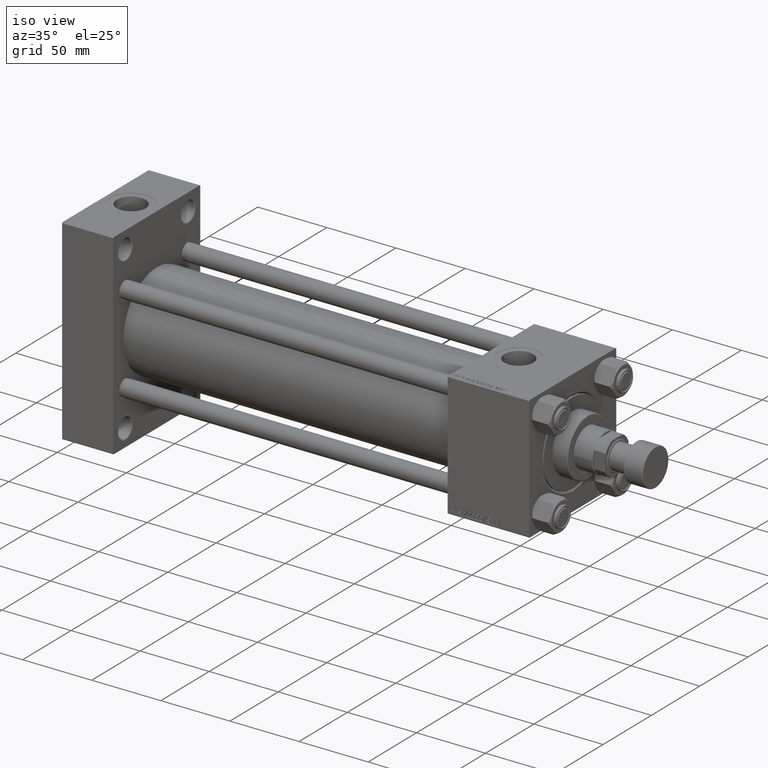
[diagram: clean part render]
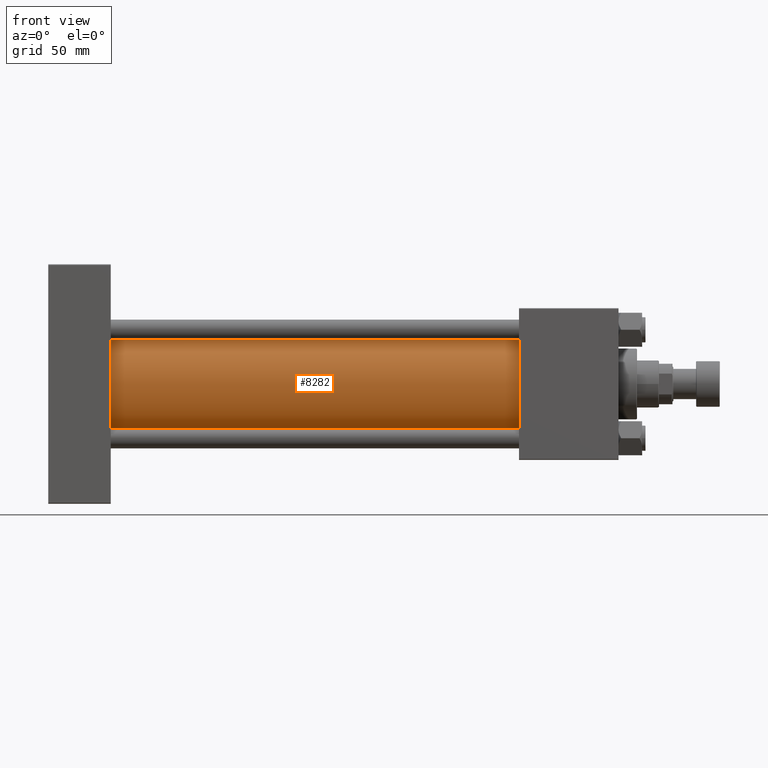
[diagram: tour spotlight — one face highlighted and labeled with its STEP entity id]
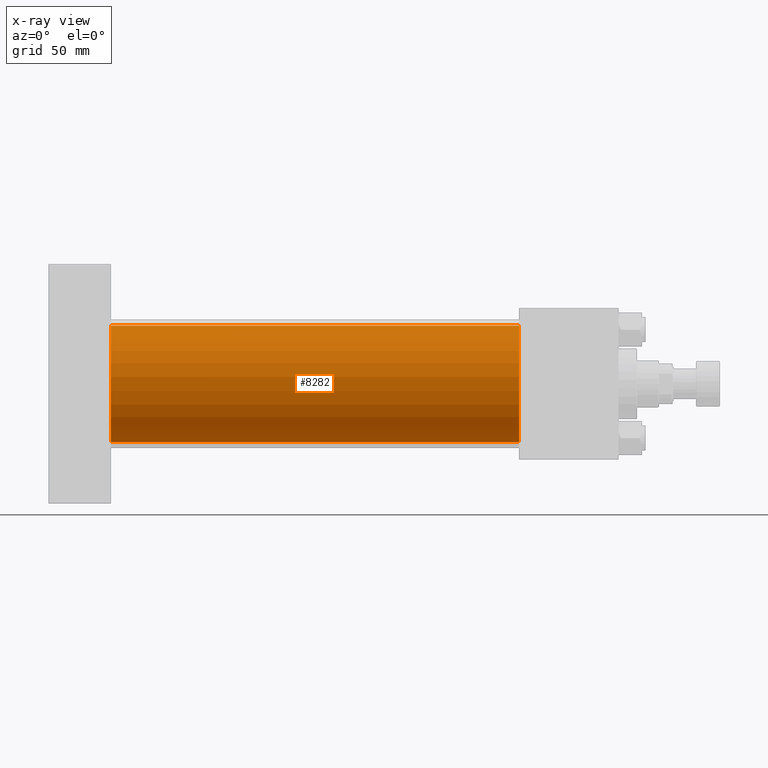
[diagram: x-ray of the same camera — body ghosted, this tour face saturated]
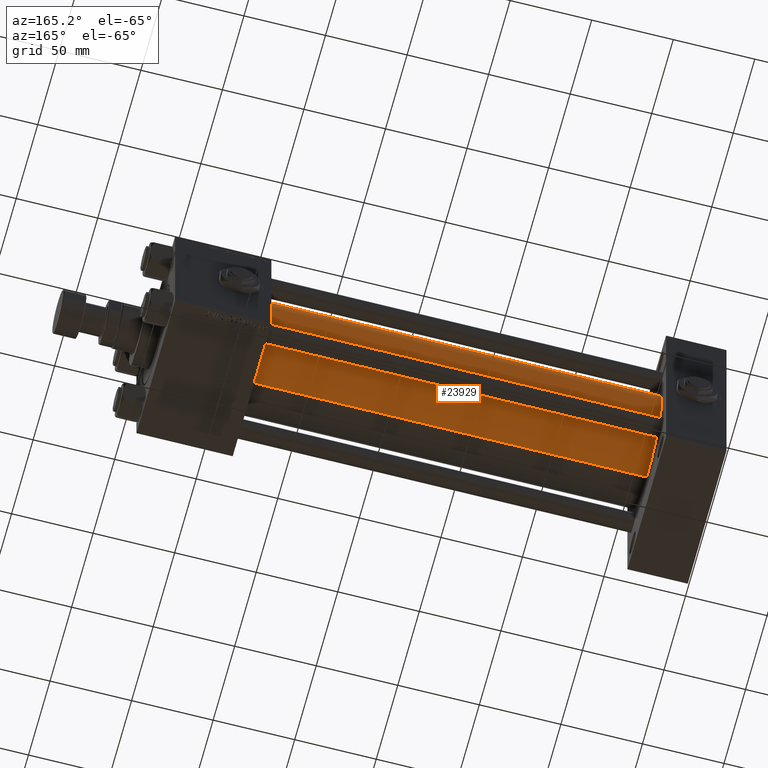
[diagram: tour spotlight — one face highlighted and labeled with its STEP entity id]
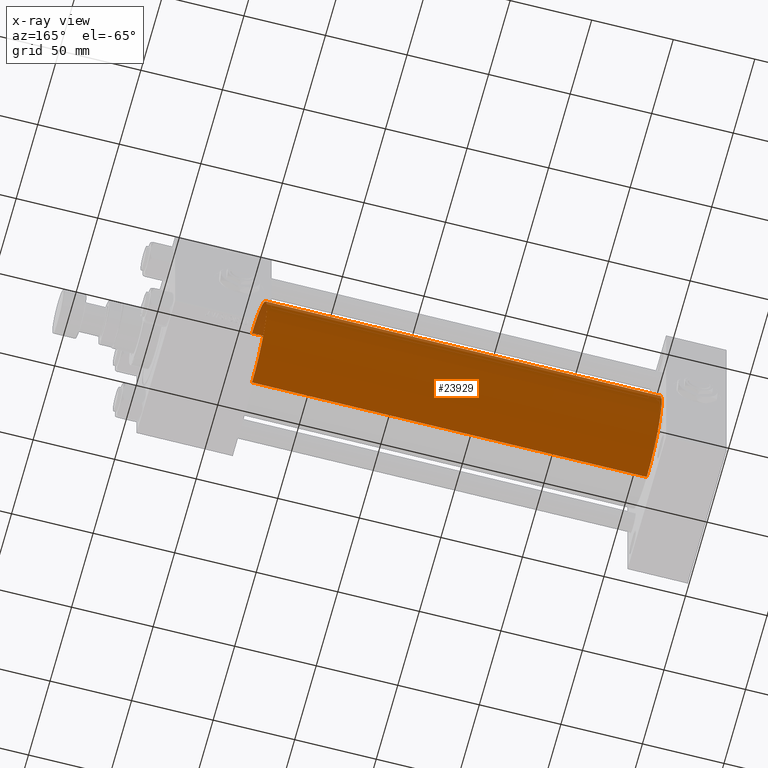
[diagram: x-ray of the same camera — body ghosted, this tour face saturated]
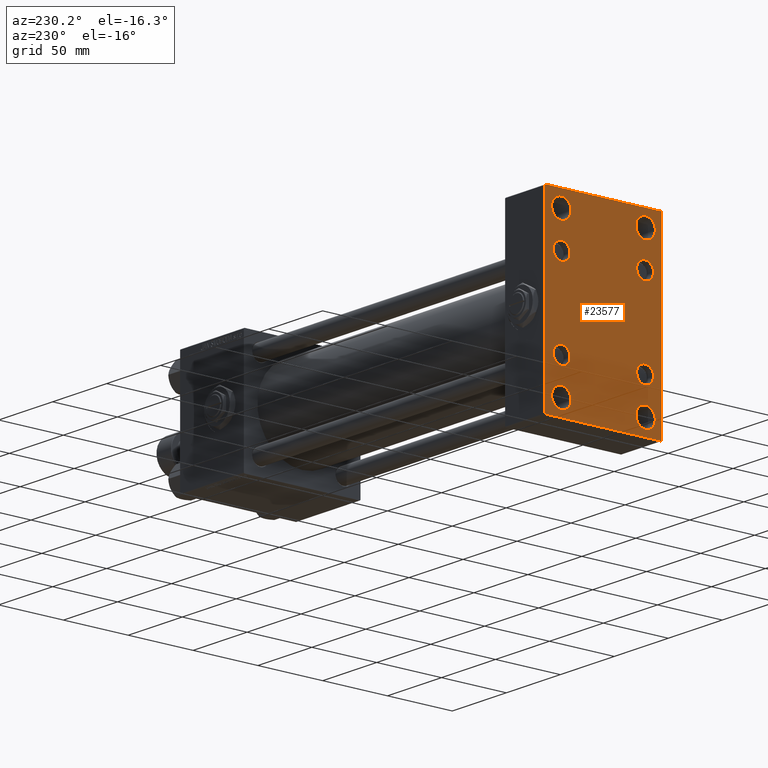
[diagram: tour spotlight — one face highlighted and labeled with its STEP entity id]
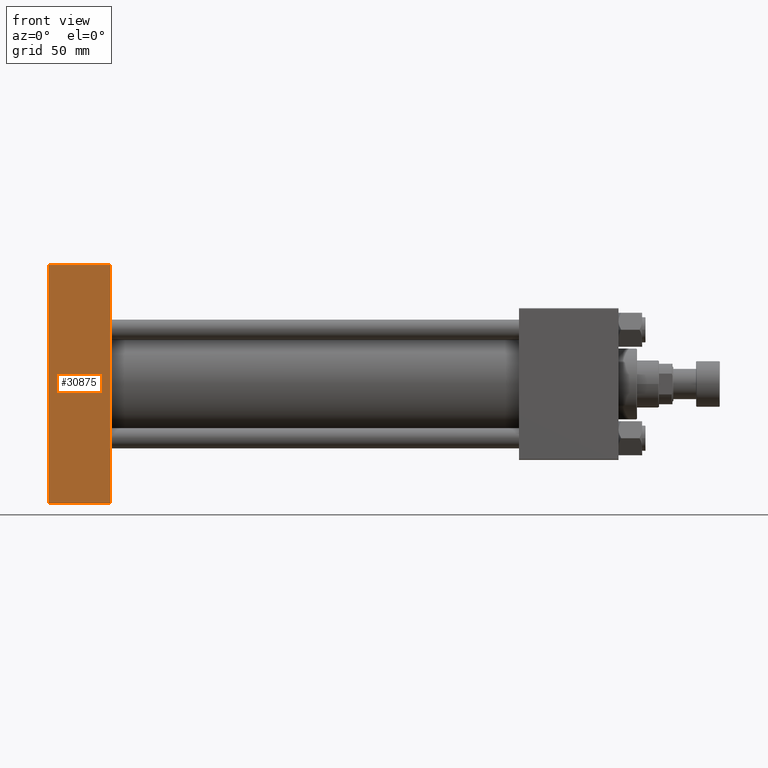
[diagram: tour spotlight — one face highlighted and labeled with its STEP entity id]
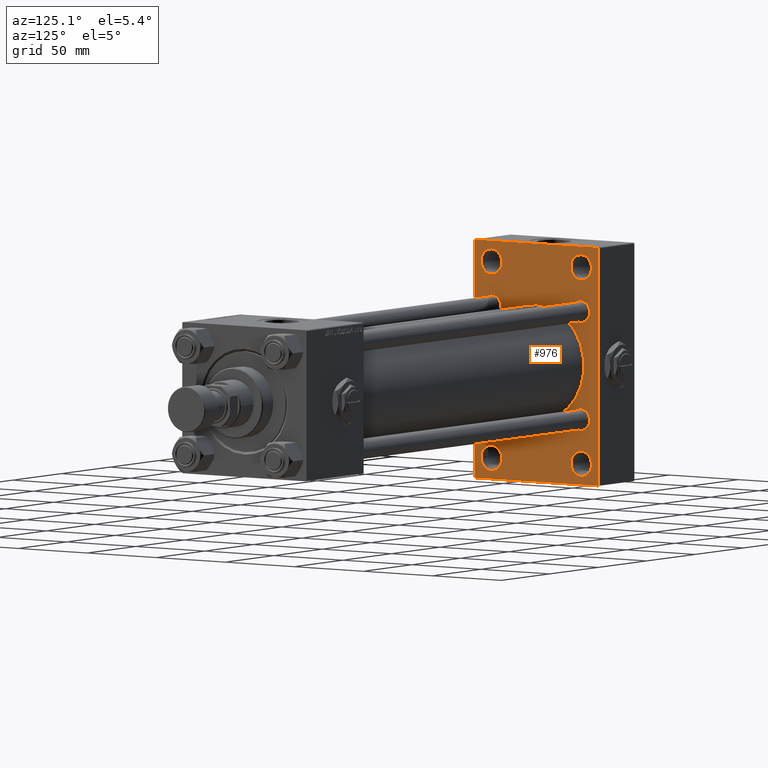
[diagram: tour spotlight — one face highlighted and labeled with its STEP entity id]
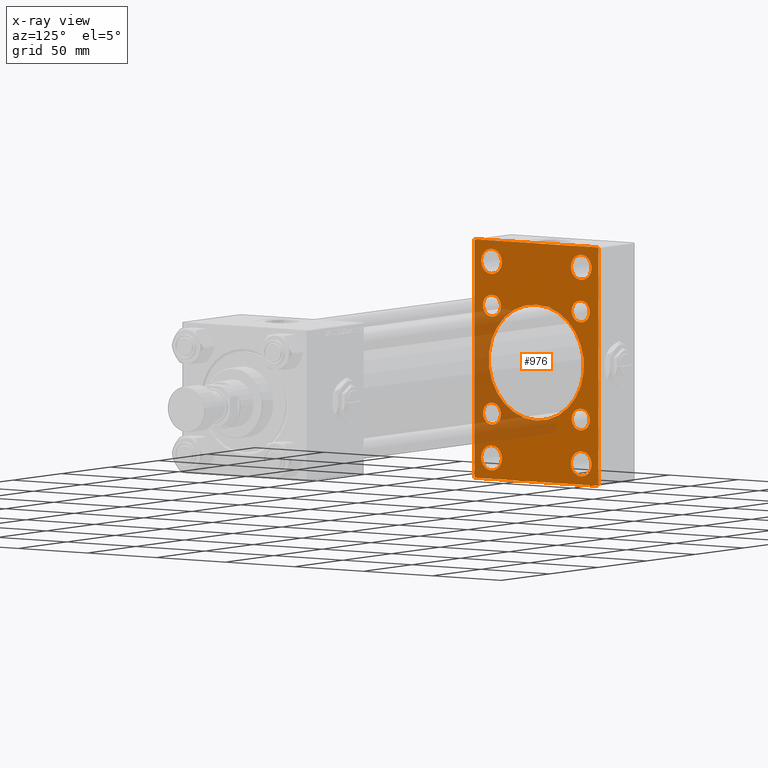
[diagram: x-ray of the same camera — body ghosted, this tour face saturated]
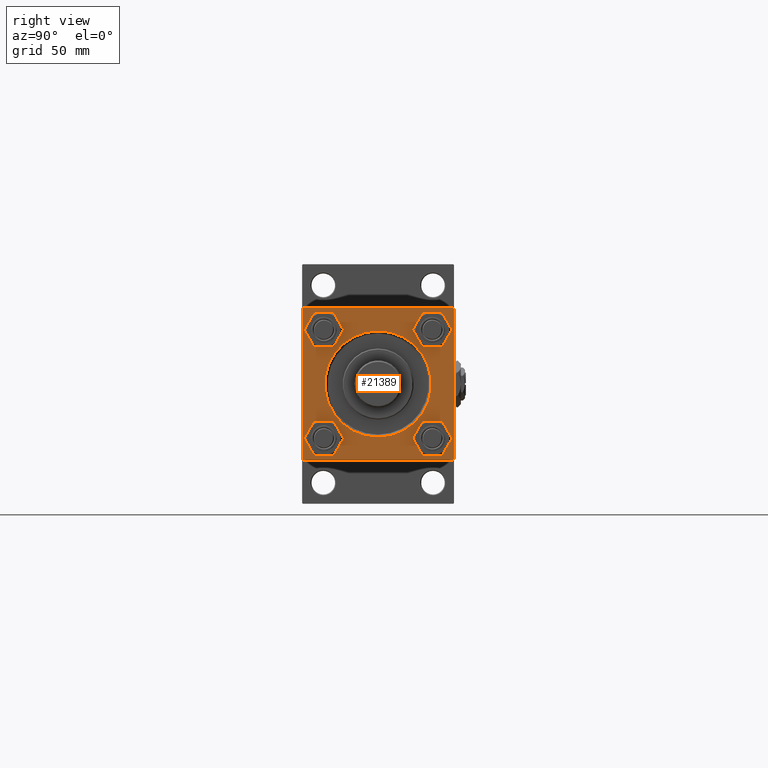
[diagram: tour spotlight — one face highlighted and labeled with its STEP entity id]
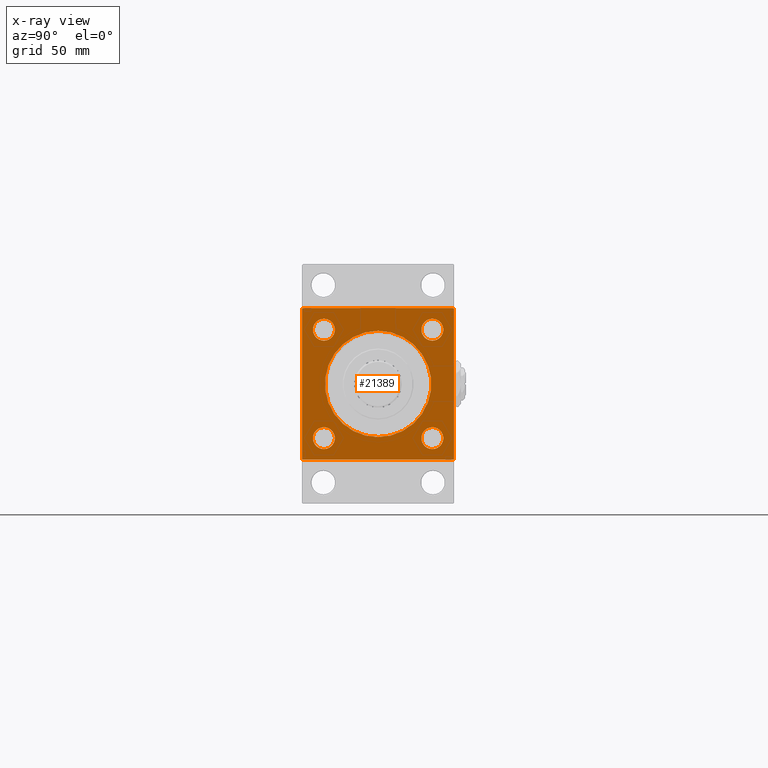
[diagram: x-ray of the same camera — body ghosted, this tour face saturated]
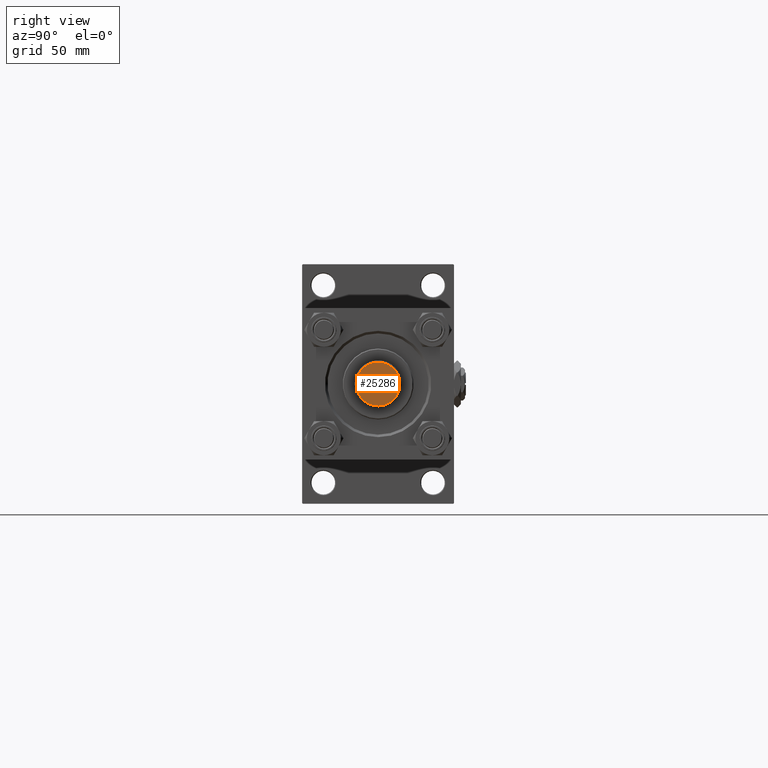
[diagram: tour spotlight — one face highlighted and labeled with its STEP entity id]
A machine part: a face-by-face anatomy tour. The part has 1251 B-rep faces; the first image is the clean iso view, then the 7 largest visible faces are spotlighted one at a time (largest first), each with its STEP entity span.

Face 1 — front view, entity #8282. An x-ray twin of the same camera follows (body ghosted, this face saturated) — the face is partly hidden behind the body. In plain terms, the highlighted cylindrical surface (partial cylindrical patch) has radius 34.5 mm, axis along (-1, -0, -0).
Definition (entity closure, byte-faithful):
#1390 = LINE ( 'NONE', #5381, #24185 ) ;
#3321 = VERTEX_POINT ( 'NONE', #45917 ) ;
#3628 = CIRCLE ( 'NONE', #10431, 34.50000000000000000 ) ;
#4588 = VERTEX_POINT ( 'NONE', #7551 ) ;
#5381 = CARTESIAN_POINT ( 'NONE',  ( 278.9999999999999432, -2.602085213965210642E-15, 34.50000000000000000 ) ) ;
#5462 = VECTOR ( 'NONE', #22480, 1000.000000000000000 ) ;
#7551 = CARTESIAN_POINT ( 'NONE',  ( 37.00000000000000711, -2.602085213965210642E-15, 34.50000000000000000 ) ) ;
#8282 = ADVANCED_FACE ( 'NONE', ( #36072 ), #11892, .T. ) ;
#10431 = AXIS2_PLACEMENT_3D ( 'NONE', #38228, #18032, #34258 ) ;
#11892 = CYLINDRICAL_SURFACE ( 'NONE', #38937, 34.50000000000000000 ) ;
#13347 = EDGE_CURVE ( 'NONE', #37771, #3321, #40715, .T. ) ;
#15105 = DIRECTION ( 'NONE',  ( -1.000000000000000000, -0.000000000000000000, -0.000000000000000000 ) ) ;
#15878 = DIRECTION ( 'NONE',  ( 0.000000000000000000, 0.000000000000000000, 1.000000000000000000 ) ) ;
#18032 = DIRECTION ( 'NONE',  ( 1.000000000000000000, 0.000000000000000000, 0.000000000000000000 ) ) ;
#20715 = DIRECTION ( 'NONE',  ( 1.000000000000000000, 0.000000000000000000, 0.000000000000000000 ) ) ;
#21336 = DIRECTION ( 'NONE',  ( -1.000000000000000000, -0.000000000000000000, -0.000000000000000000 ) ) ;
#22480 = DIRECTION ( 'NONE',  ( -1.000000000000000000, -0.000000000000000000, -0.000000000000000000 ) ) ;
#23819 = EDGE_LOOP ( 'NONE', ( #25421, #35860, #28371, #35288 ) ) ;
#24185 = VECTOR ( 'NONE', #21336, 1000.000000000000000 ) ;
#24499 = EDGE_CURVE ( 'NONE', #4588, #24522, #3628, .T. ) ;
#24522 = VERTEX_POINT ( 'NONE', #46719 ) ;
#25421 = ORIENTED_EDGE ( 'NONE', *, *, #27529, .F. ) ;
#27174 = DIRECTION ( 'NONE',  ( 0.000000000000000000, 0.000000000000000000, -1.000000000000000000 ) ) ;
#27529 = EDGE_CURVE ( 'NONE', #3321, #24522, #42670, .T. ) ;
#28371 = ORIENTED_EDGE ( 'NONE', *, *, #30368, .T. ) ;
#29674 = CARTESIAN_POINT ( 'NONE',  ( 278.9999999999999432, 1.622946243093158675E-15, -34.50000000000000000 ) ) ;
#30368 = EDGE_CURVE ( 'NONE', #37771, #4588, #1390, .T. ) ;
#34258 = DIRECTION ( 'NONE',  ( 0.000000000000000000, 0.000000000000000000, 1.000000000000000000 ) ) ;
#34806 = CARTESIAN_POINT ( 'NONE',  ( 278.9999999999999432, -2.602085213965210642E-15, 34.50000000000000000 ) ) ;
#35288 = ORIENTED_EDGE ( 'NONE', *, *, #24499, .T. ) ;
#35428 = CARTESIAN_POINT ( 'NONE',  ( 278.9999999999999432, -2.602085213965210642E-15, 0.000000000000000000 ) ) ;
#35860 = ORIENTED_EDGE ( 'NONE', *, *, #13347, .F. ) ;
#36072 = FACE_OUTER_BOUND ( 'NONE', #23819, .T. ) ;
#37771 = VERTEX_POINT ( 'NONE', #34806 ) ;
#38228 = CARTESIAN_POINT ( 'NONE',  ( 37.00000000000000711, -2.602085213965210642E-15, 0.000000000000000000 ) ) ;
#38937 = AXIS2_PLACEMENT_3D ( 'NONE', #52259, #15105, #15878 ) ;
#40715 = CIRCLE ( 'NONE', #43263, 34.50000000000000000 ) ;
#42670 = LINE ( 'NONE', #29674, #5462 ) ;
#43263 = AXIS2_PLACEMENT_3D ( 'NONE', #35428, #20715, #27174 ) ;
#45917 = CARTESIAN_POINT ( 'NONE',  ( 278.9999999999999432, 1.622946243093158675E-15, -34.50000000000000000 ) ) ;
#46719 = CARTESIAN_POINT ( 'NONE',  ( 37.00000000000000711, 1.622946243093158675E-15, -34.50000000000000000 ) ) ;
#52259 = CARTESIAN_POINT ( 'NONE',  ( 278.9999999999999432, -2.602085213965210642E-15, 0.000000000000000000 ) ) ;

Face 2 — auxiliary view, entity #23929. An x-ray twin of the same camera follows (body ghosted, this face saturated) — the face is partly hidden behind the body. In plain terms, the highlighted cylindrical surface (partial cylindrical patch) has radius 34.5 mm, axis along (-1, -0, -0).
Definition (entity closure, byte-faithful):
#1390 = LINE ( 'NONE', #5381, #24185 ) ;
#3321 = VERTEX_POINT ( 'NONE', #45917 ) ;
#3704 = CIRCLE ( 'NONE', #24080, 34.50000000000000000 ) ;
#4588 = VERTEX_POINT ( 'NONE', #7551 ) ;
#5381 = CARTESIAN_POINT ( 'NONE',  ( 278.9999999999999432, -2.602085213965210642E-15, 34.50000000000000000 ) ) ;
#5462 = VECTOR ( 'NONE', #22480, 1000.000000000000000 ) ;
#7551 = CARTESIAN_POINT ( 'NONE',  ( 37.00000000000000711, -2.602085213965210642E-15, 34.50000000000000000 ) ) ;
#8454 = EDGE_CURVE ( 'NONE', #24522, #4588, #48280, .T. ) ;
#8958 = CARTESIAN_POINT ( 'NONE',  ( 37.00000000000000711, -2.602085213965210642E-15, 0.000000000000000000 ) ) ;
#12449 = EDGE_LOOP ( 'NONE', ( #21393, #40696, #13597, #44053 ) ) ;
#13597 = ORIENTED_EDGE ( 'NONE', *, *, #8454, .T. ) ;
#19203 = CARTESIAN_POINT ( 'NONE',  ( 278.9999999999999432, -2.602085213965210642E-15, 0.000000000000000000 ) ) ;
#19708 = CARTESIAN_POINT ( 'NONE',  ( 278.9999999999999432, -2.602085213965210642E-15, 0.000000000000000000 ) ) ;
#21336 = DIRECTION ( 'NONE',  ( -1.000000000000000000, -0.000000000000000000, -0.000000000000000000 ) ) ;
#21393 = ORIENTED_EDGE ( 'NONE', *, *, #27033, .F. ) ;
#22480 = DIRECTION ( 'NONE',  ( -1.000000000000000000, -0.000000000000000000, -0.000000000000000000 ) ) ;
#23184 = CYLINDRICAL_SURFACE ( 'NONE', #25687, 34.50000000000000000 ) ;
#23929 = ADVANCED_FACE ( 'NONE', ( #40173 ), #23184, .T. ) ;
#24080 = AXIS2_PLACEMENT_3D ( 'NONE', #19203, #47363, #44163 ) ;
#24185 = VECTOR ( 'NONE', #21336, 1000.000000000000000 ) ;
#24522 = VERTEX_POINT ( 'NONE', #46719 ) ;
#25687 = AXIS2_PLACEMENT_3D ( 'NONE', #19708, #31163, #43651 ) ;
#27033 = EDGE_CURVE ( 'NONE', #3321, #37771, #3704, .T. ) ;
#27529 = EDGE_CURVE ( 'NONE', #3321, #24522, #42670, .T. ) ;
#28351 = DIRECTION ( 'NONE',  ( 1.000000000000000000, 0.000000000000000000, 0.000000000000000000 ) ) ;
#29674 = CARTESIAN_POINT ( 'NONE',  ( 278.9999999999999432, 1.622946243093158675E-15, -34.50000000000000000 ) ) ;
#30368 = EDGE_CURVE ( 'NONE', #37771, #4588, #1390, .T. ) ;
#31163 = DIRECTION ( 'NONE',  ( -1.000000000000000000, -0.000000000000000000, -0.000000000000000000 ) ) ;
#34739 = AXIS2_PLACEMENT_3D ( 'NONE', #8958, #28351, #44566 ) ;
#34806 = CARTESIAN_POINT ( 'NONE',  ( 278.9999999999999432, -2.602085213965210642E-15, 34.50000000000000000 ) ) ;
#37771 = VERTEX_POINT ( 'NONE', #34806 ) ;
#40173 = FACE_OUTER_BOUND ( 'NONE', #12449, .T. ) ;
#40696 = ORIENTED_EDGE ( 'NONE', *, *, #27529, .T. ) ;
#42670 = LINE ( 'NONE', #29674, #5462 ) ;
#43651 = DIRECTION ( 'NONE',  ( 0.000000000000000000, 0.000000000000000000, 1.000000000000000000 ) ) ;
#44053 = ORIENTED_EDGE ( 'NONE', *, *, #30368, .F. ) ;
#44163 = DIRECTION ( 'NONE',  ( 0.000000000000000000, 0.000000000000000000, -1.000000000000000000 ) ) ;
#44566 = DIRECTION ( 'NONE',  ( 0.000000000000000000, 0.000000000000000000, 1.000000000000000000 ) ) ;
#45917 = CARTESIAN_POINT ( 'NONE',  ( 278.9999999999999432, 1.622946243093158675E-15, -34.50000000000000000 ) ) ;
#46719 = CARTESIAN_POINT ( 'NONE',  ( 37.00000000000000711, 1.622946243093158675E-15, -34.50000000000000000 ) ) ;
#47363 = DIRECTION ( 'NONE',  ( 1.000000000000000000, 0.000000000000000000, 0.000000000000000000 ) ) ;
#48280 = CIRCLE ( 'NONE', #34739, 34.50000000000000000 ) ;

Face 3 — auxiliary view, entity #23577. In plain terms, the highlighted planar face has unit normal (-1, 0, 0).
Definition (entity closure, byte-faithful):
#1 = CARTESIAN_POINT ( 'NONE',  ( 0.000000000000000000, -32.14999999999997726, -38.65000000000004832 ) ) ;
#284 = ORIENTED_EDGE ( 'NONE', *, *, #5701, .T. ) ;
#735 = DIRECTION ( 'NONE',  ( 1.000000000000000000, 0.000000000000000000, 0.000000000000000000 ) ) ;
#925 = CARTESIAN_POINT ( 'NONE',  ( 0.000000000000000000, 32.14999999999999147, 32.15000000000000568 ) ) ;
#1010 = FACE_OUTER_BOUND ( 'NONE', #4865, .T. ) ;
#1279 = FACE_BOUND ( 'NONE', #48475, .T. ) ;
#1570 = ORIENTED_EDGE ( 'NONE', *, *, #29414, .T. ) ;
#1909 = ORIENTED_EDGE ( 'NONE', *, *, #43321, .T. ) ;
#1953 = DIRECTION ( 'NONE',  ( 0.000000000000000000, -0.7071067811865524577, 0.7071067811865426878 ) ) ;
#2842 = EDGE_CURVE ( 'NONE', #4406, #20067, #36035, .T. ) ;
#2927 = EDGE_LOOP ( 'NONE', ( #4121, #30748 ) ) ;
#2969 = VERTEX_POINT ( 'NONE', #1 ) ;
#3781 = DIRECTION ( 'NONE',  ( 0.000000000000000000, 0.000000000000000000, 1.000000000000000000 ) ) ;
#3822 = CARTESIAN_POINT ( 'NONE',  ( 0.000000000000000000, -32.14999999999997726, 38.65000000000004832 ) ) ;
#4121 = ORIENTED_EDGE ( 'NONE', *, *, #7038, .T. ) ;
#4394 = EDGE_CURVE ( 'NONE', #45009, #35136, #19002, .T. ) ;
#4406 = VERTEX_POINT ( 'NONE', #39187 ) ;
#4646 = CARTESIAN_POINT ( 'NONE',  ( 0.000000000000000000, -32.14999999999997726, -32.15000000000001279 ) ) ;
#4666 = VERTEX_POINT ( 'NONE', #49782 ) ;
#4717 = AXIS2_PLACEMENT_3D ( 'NONE', #9601, #11161, #11688 ) ;
#4747 = FACE_BOUND ( 'NONE', #5982, .T. ) ;
#4865 = EDGE_LOOP ( 'NONE', ( #43361, #18388, #27157, #25924, #39102, #21553, #46824, #19099 ) ) ;
#4917 = DIRECTION ( 'NONE',  ( 0.000000000000000000, 0.000000000000000000, 1.000000000000000000 ) ) ;
#5071 = ORIENTED_EDGE ( 'NONE', *, *, #31873, .T. ) ;
#5701 = EDGE_CURVE ( 'NONE', #27143, #37499, #52413, .T. ) ;
#5982 = EDGE_LOOP ( 'NONE', ( #33489, #51759 ) ) ;
#6038 = VECTOR ( 'NONE', #1953, 1000.000000000000000 ) ;
#6124 = CIRCLE ( 'NONE', #35829, 6.500000000000033751 ) ;
#7004 = ORIENTED_EDGE ( 'NONE', *, *, #7749, .T. ) ;
#7038 = EDGE_CURVE ( 'NONE', #19191, #47074, #44858, .T. ) ;
#7703 = DIRECTION ( 'NONE',  ( 0.000000000000000000, 0.000000000000000000, 1.000000000000000000 ) ) ;
#7749 = EDGE_CURVE ( 'NONE', #31778, #26817, #34701, .T. ) ;
#8107 = CARTESIAN_POINT ( 'NONE',  ( 0.000000000000000000, 32.14999999999999147, 25.64999999999997016 ) ) ;
#8254 = VERTEX_POINT ( 'NONE', #51486 ) ;
#8311 = CARTESIAN_POINT ( 'NONE',  ( 0.000000000000000000, 32.14999999999999147, -32.15000000000000568 ) ) ;
#8453 = CARTESIAN_POINT ( 'NONE',  ( 0.000000000000000000, 32.50000000000000000, 58.50000000000000000 ) ) ;
#9012 = CARTESIAN_POINT ( 'NONE',  ( 0.000000000000000000, 45.00000000000000711, 71.00000000000000000 ) ) ;
#9026 = CIRCLE ( 'NONE', #10719, 7.500000000000284217 ) ;
#9369 = LINE ( 'NONE', #20536, #52207 ) ;
#9548 = EDGE_CURVE ( 'NONE', #41007, #40124, #13743, .T. ) ;
#9601 = CARTESIAN_POINT ( 'NONE',  ( 0.000000000000000000, 32.50000000000000000, -58.50000000000000711 ) ) ;
#9813 = CIRCLE ( 'NONE', #4717, 7.500000000000284217 ) ;
#10461 = ORIENTED_EDGE ( 'NONE', *, *, #48113, .T. ) ;
#10609 = VECTOR ( 'NONE', #15019, 1000.000000000000000 ) ;
#10719 = AXIS2_PLACEMENT_3D ( 'NONE', #13874, #26086, #47312 ) ;
#10816 = DIRECTION ( 'NONE',  ( 0.000000000000000000, 0.000000000000000000, -1.000000000000000000 ) ) ;
#11161 = DIRECTION ( 'NONE',  ( 1.000000000000000000, 0.000000000000000000, 0.000000000000000000 ) ) ;
#11293 = CIRCLE ( 'NONE', #23153, 7.500000000000229150 ) ;
#11668 = CARTESIAN_POINT ( 'NONE',  ( 0.000000000000000000, 32.14999999999999147, 38.65000000000004832 ) ) ;
#11688 = DIRECTION ( 'NONE',  ( 0.000000000000000000, 0.000000000000000000, 1.000000000000000000 ) ) ;
#12237 = CARTESIAN_POINT ( 'NONE',  ( 0.000000000000000000, -32.50000000000000000, 66.00000000000022737 ) ) ;
#12847 = DIRECTION ( 'NONE',  ( -0.000000000000000000, -0.7071067811865279218, -0.7071067811865671127 ) ) ;
#13007 = FACE_BOUND ( 'NONE', #45514, .T. ) ;
#13271 = DIRECTION ( 'NONE',  ( -1.000000000000000000, 0.000000000000000000, -0.000000000000000000 ) ) ;
#13438 = CARTESIAN_POINT ( 'NONE',  ( 0.000000000000000000, -44.49999999999999289, 70.99999999999998579 ) ) ;
#13743 = LINE ( 'NONE', #38698, #30403 ) ;
#13874 = CARTESIAN_POINT ( 'NONE',  ( 0.000000000000000000, 32.50000000000000000, -58.50000000000000711 ) ) ;
#13892 = ORIENTED_EDGE ( 'NONE', *, *, #17520, .T. ) ;
#14482 = EDGE_LOOP ( 'NONE', ( #7004, #1570 ) ) ;
#14490 = EDGE_LOOP ( 'NONE', ( #5071, #1909 ) ) ;
#14775 = DIRECTION ( 'NONE',  ( 0.000000000000000000, 0.000000000000000000, 1.000000000000000000 ) ) ;
#14812 = LINE ( 'NONE', #47219, #15602 ) ;
#15019 = DIRECTION ( 'NONE',  ( 0.000000000000000000, 0.7071067811865573427, -0.7071067811865378028 ) ) ;
#15602 = VECTOR ( 'NONE', #10816, 1000.000000000000000 ) ;
#15840 = CARTESIAN_POINT ( 'NONE',  ( -0.000000000000000000, -57.75000000000092371, 57.74999999999852207 ) ) ;
#16030 = DIRECTION ( 'NONE',  ( 0.000000000000000000, 0.000000000000000000, 1.000000000000000000 ) ) ;
#16057 = DIRECTION ( 'NONE',  ( 1.000000000000000000, 0.000000000000000000, 0.000000000000000000 ) ) ;
#16730 = EDGE_CURVE ( 'NONE', #40124, #8254, #23198, .T. ) ;
#17041 = CARTESIAN_POINT ( 'NONE',  ( 0.000000000000000000, 44.50000000000000711, 71.00000000000000000 ) ) ;
#17085 = CIRCLE ( 'NONE', #28099, 7.500000000000214939 ) ;
#17411 = EDGE_CURVE ( 'NONE', #47074, #19191, #17085, .T. ) ;
#17520 = EDGE_CURVE ( 'NONE', #2969, #31933, #38316, .T. ) ;
#18334 = VERTEX_POINT ( 'NONE', #8107 ) ;
#18373 = AXIS2_PLACEMENT_3D ( 'NONE', #37320, #16057, #20565 ) ;
#18388 = ORIENTED_EDGE ( 'NONE', *, *, #30334, .T. ) ;
#18629 = EDGE_CURVE ( 'NONE', #22127, #38734, #51043, .T. ) ;
#18986 = CIRCLE ( 'NONE', #24946, 6.500000000000033751 ) ;
#19002 = LINE ( 'NONE', #30696, #10609 ) ;
#19099 = ORIENTED_EDGE ( 'NONE', *, *, #4394, .T. ) ;
#19191 = VERTEX_POINT ( 'NONE', #44929 ) ;
#19933 = CIRCLE ( 'NONE', #26738, 7.500000000000284217 ) ;
#20067 = VERTEX_POINT ( 'NONE', #13438 ) ;
#20536 = CARTESIAN_POINT ( 'NONE',  ( -0.000000000000000000, 57.75000000000122924, -57.74999999999802469 ) ) ;
#20565 = DIRECTION ( 'NONE',  ( 0.000000000000000000, 0.000000000000000000, 1.000000000000000000 ) ) ;
#20680 = DIRECTION ( 'NONE',  ( 0.000000000000000000, 0.000000000000000000, 1.000000000000000000 ) ) ;
#20708 = CARTESIAN_POINT ( 'NONE',  ( 0.000000000000000000, 45.00000000000000711, -70.49999999999997158 ) ) ;
#20755 = VERTEX_POINT ( 'NONE', #50659 ) ;
#20818 = EDGE_CURVE ( 'NONE', #33893, #48481, #49469, .T. ) ;
#20849 = DIRECTION ( 'NONE',  ( 0.000000000000000000, 0.000000000000000000, 1.000000000000000000 ) ) ;
#20968 = DIRECTION ( 'NONE',  ( -0.000000000000000000, 0.000000000000000000, 1.000000000000000000 ) ) ;
#21243 = DIRECTION ( 'NONE',  ( 0.000000000000000000, 0.000000000000000000, -1.000000000000000000 ) ) ;
#21553 = ORIENTED_EDGE ( 'NONE', *, *, #2842, .T. ) ;
#22127 = VERTEX_POINT ( 'NONE', #25076 ) ;
#22141 = ORIENTED_EDGE ( 'NONE', *, *, #34005, .T. ) ;
#23153 = AXIS2_PLACEMENT_3D ( 'NONE', #52447, #44227, #20849 ) ;
#23198 = LINE ( 'NONE', #26144, #6038 ) ;
#23577 = ADVANCED_FACE ( 'NONE', ( #26707, #34956, #37446, #33721, #51140, #13007, #1279, #4747, #1010 ), #45407, .T. ) ;
#24155 = DIRECTION ( 'NONE',  ( 1.000000000000000000, 0.000000000000000000, 0.000000000000000000 ) ) ;
#24946 = AXIS2_PLACEMENT_3D ( 'NONE', #925, #44792, #40799 ) ;
#25032 = CARTESIAN_POINT ( 'NONE',  ( 0.000000000000000000, -32.14999999999997726, 25.64999999999997726 ) ) ;
#25076 = CARTESIAN_POINT ( 'NONE',  ( 0.000000000000000000, 32.14999999999999147, -25.65000000000002700 ) ) ;
#25337 = VERTEX_POINT ( 'NONE', #11668 ) ;
#25380 = CARTESIAN_POINT ( 'NONE',  ( 0.000000000000000000, 32.50000000000000000, 58.50000000000000000 ) ) ;
#25631 = EDGE_CURVE ( 'NONE', #4406, #8254, #14812, .T. ) ;
#25924 = ORIENTED_EDGE ( 'NONE', *, *, #16730, .T. ) ;
#26086 = DIRECTION ( 'NONE',  ( 1.000000000000000000, 0.000000000000000000, 0.000000000000000000 ) ) ;
#26144 = CARTESIAN_POINT ( 'NONE',  ( 0.000000000000000000, -57.74999999999968026, -57.75000000000048317 ) ) ;
#26559 = CARTESIAN_POINT ( 'NONE',  ( 0.000000000000000000, -32.50000000000000000, -58.50000000000000711 ) ) ;
#26707 = FACE_BOUND ( 'NONE', #2927, .T. ) ;
#26738 = AXIS2_PLACEMENT_3D ( 'NONE', #27458, #39933, #3781 ) ;
#26817 = VERTEX_POINT ( 'NONE', #33331 ) ;
#26881 = EDGE_CURVE ( 'NONE', #25337, #18334, #41095, .T. ) ;
#27143 = VERTEX_POINT ( 'NONE', #38038 ) ;
#27157 = ORIENTED_EDGE ( 'NONE', *, *, #9548, .T. ) ;
#27324 = EDGE_CURVE ( 'NONE', #45009, #20067, #37389, .T. ) ;
#27458 = CARTESIAN_POINT ( 'NONE',  ( 0.000000000000000000, -32.50000000000000000, -58.50000000000000711 ) ) ;
#28099 = AXIS2_PLACEMENT_3D ( 'NONE', #25380, #41331, #33355 ) ;
#28137 = AXIS2_PLACEMENT_3D ( 'NONE', #8311, #39942, #16030 ) ;
#28225 = ORIENTED_EDGE ( 'NONE', *, *, #20818, .T. ) ;
#28589 = CARTESIAN_POINT ( 'NONE',  ( 0.000000000000000000, -44.49999999999999289, -70.99999999999998579 ) ) ;
#28781 = EDGE_LOOP ( 'NONE', ( #28225, #30958 ) ) ;
#29414 = EDGE_CURVE ( 'NONE', #26817, #31778, #19933, .T. ) ;
#29605 = DIRECTION ( 'NONE',  ( 0.000000000000000000, 0.000000000000000000, 1.000000000000000000 ) ) ;
#29705 = DIRECTION ( 'NONE',  ( 0.000000000000000000, 0.000000000000000000, 1.000000000000000000 ) ) ;
#30148 = ORIENTED_EDGE ( 'NONE', *, *, #18629, .T. ) ;
#30334 = EDGE_CURVE ( 'NONE', #43565, #41007, #9369, .T. ) ;
#30403 = VECTOR ( 'NONE', #50120, 1000.000000000000000 ) ;
#30696 = CARTESIAN_POINT ( 'NONE',  ( -0.000000000000000000, 57.74999999999938183, 57.75000000000098055 ) ) ;
#30748 = ORIENTED_EDGE ( 'NONE', *, *, #17411, .T. ) ;
#30958 = ORIENTED_EDGE ( 'NONE', *, *, #43575, .T. ) ;
#31778 = VERTEX_POINT ( 'NONE', #47888 ) ;
#31873 = EDGE_CURVE ( 'NONE', #20755, #4666, #9026, .T. ) ;
#31903 = CARTESIAN_POINT ( 'NONE',  ( 0.000000000000000000, -32.50000000000000000, 58.50000000000000000 ) ) ;
#31933 = VERTEX_POINT ( 'NONE', #34331 ) ;
#32044 = DIRECTION ( 'NONE',  ( -0.000000000000000000, 0.7071067811865328068, 0.7071067811865622277 ) ) ;
#32995 = AXIS2_PLACEMENT_3D ( 'NONE', #8453, #735, #20680 ) ;
#33331 = CARTESIAN_POINT ( 'NONE',  ( 0.000000000000000000, -32.50000000000000000, -66.00000000000028422 ) ) ;
#33355 = DIRECTION ( 'NONE',  ( 0.000000000000000000, 0.000000000000000000, 1.000000000000000000 ) ) ;
#33489 = ORIENTED_EDGE ( 'NONE', *, *, #26881, .T. ) ;
#33601 = CARTESIAN_POINT ( 'NONE',  ( 0.000000000000000000, 32.14999999999999147, 32.15000000000000568 ) ) ;
#33721 = FACE_BOUND ( 'NONE', #14490, .T. ) ;
#33812 = EDGE_CURVE ( 'NONE', #35136, #43565, #45418, .T. ) ;
#33893 = VERTEX_POINT ( 'NONE', #3822 ) ;
#34005 = EDGE_CURVE ( 'NONE', #37499, #27143, #11293, .T. ) ;
#34331 = CARTESIAN_POINT ( 'NONE',  ( 0.000000000000000000, -32.14999999999997726, -25.64999999999997726 ) ) ;
#34437 = AXIS2_PLACEMENT_3D ( 'NONE', #44623, #24155, #40364 ) ;
#34701 = CIRCLE ( 'NONE', #44894, 7.500000000000284217 ) ;
#34956 = FACE_BOUND ( 'NONE', #51131, .T. ) ;
#35082 = EDGE_CURVE ( 'NONE', #31933, #2969, #6124, .T. ) ;
#35136 = VERTEX_POINT ( 'NONE', #36010 ) ;
#35268 = CIRCLE ( 'NONE', #34437, 6.500000000000033751 ) ;
#35495 = AXIS2_PLACEMENT_3D ( 'NONE', #31903, #48095, #7703 ) ;
#35829 = AXIS2_PLACEMENT_3D ( 'NONE', #42164, #46407, #14775 ) ;
#36010 = CARTESIAN_POINT ( 'NONE',  ( 0.000000000000000000, 45.00000000000000711, 70.50000000000000000 ) ) ;
#36035 = LINE ( 'NONE', #15840, #42688 ) ;
#36729 = AXIS2_PLACEMENT_3D ( 'NONE', #49645, #13271, #20968 ) ;
#37320 = CARTESIAN_POINT ( 'NONE',  ( 0.000000000000000000, 32.14999999999999147, -32.15000000000000568 ) ) ;
#37389 = LINE ( 'NONE', #48792, #41130 ) ;
#37446 = FACE_BOUND ( 'NONE', #14482, .T. ) ;
#37499 = VERTEX_POINT ( 'NONE', #12237 ) ;
#37679 = DIRECTION ( 'NONE',  ( 1.000000000000000000, 0.000000000000000000, 0.000000000000000000 ) ) ;
#38038 = CARTESIAN_POINT ( 'NONE',  ( 0.000000000000000000, -32.50000000000000000, 50.99999999999976552 ) ) ;
#38316 = CIRCLE ( 'NONE', #48459, 6.500000000000033751 ) ;
#38698 = CARTESIAN_POINT ( 'NONE',  ( 0.000000000000000000, 45.00000000000000711, -70.99999999999998579 ) ) ;
#38734 = VERTEX_POINT ( 'NONE', #48900 ) ;
#39102 = ORIENTED_EDGE ( 'NONE', *, *, #25631, .F. ) ;
#39187 = CARTESIAN_POINT ( 'NONE',  ( 0.000000000000000000, -45.00000000000000000, 70.49999999999998579 ) ) ;
#39374 = EDGE_CURVE ( 'NONE', #18334, #25337, #18986, .T. ) ;
#39933 = DIRECTION ( 'NONE',  ( 1.000000000000000000, 0.000000000000000000, 0.000000000000000000 ) ) ;
#39942 = DIRECTION ( 'NONE',  ( 1.000000000000000000, 0.000000000000000000, 0.000000000000000000 ) ) ;
#40064 = ORIENTED_EDGE ( 'NONE', *, *, #35082, .T. ) ;
#40124 = VERTEX_POINT ( 'NONE', #28589 ) ;
#40127 = AXIS2_PLACEMENT_3D ( 'NONE', #41931, #37679, #29705 ) ;
#40364 = DIRECTION ( 'NONE',  ( 0.000000000000000000, 0.000000000000000000, 1.000000000000000000 ) ) ;
#40799 = DIRECTION ( 'NONE',  ( 0.000000000000000000, 0.000000000000000000, 1.000000000000000000 ) ) ;
#41007 = VERTEX_POINT ( 'NONE', #46645 ) ;
#41095 = CIRCLE ( 'NONE', #42759, 6.500000000000033751 ) ;
#41130 = VECTOR ( 'NONE', #45617, 1000.000000000000000 ) ;
#41297 = CIRCLE ( 'NONE', #18373, 6.499999999999977796 ) ;
#41331 = DIRECTION ( 'NONE',  ( 1.000000000000000000, 0.000000000000000000, 0.000000000000000000 ) ) ;
#41931 = CARTESIAN_POINT ( 'NONE',  ( 0.000000000000000000, -32.14999999999997726, 32.15000000000001279 ) ) ;
#42164 = CARTESIAN_POINT ( 'NONE',  ( 0.000000000000000000, -32.14999999999997726, -32.15000000000001279 ) ) ;
#42688 = VECTOR ( 'NONE', #32044, 1000.000000000000000 ) ;
#42759 = AXIS2_PLACEMENT_3D ( 'NONE', #33601, #46066, #29605 ) ;
#43321 = EDGE_CURVE ( 'NONE', #4666, #20755, #9813, .T. ) ;
#43361 = ORIENTED_EDGE ( 'NONE', *, *, #33812, .T. ) ;
#43565 = VERTEX_POINT ( 'NONE', #20708 ) ;
#43575 = EDGE_CURVE ( 'NONE', #48481, #33893, #35268, .T. ) ;
#44227 = DIRECTION ( 'NONE',  ( 1.000000000000000000, 0.000000000000000000, 0.000000000000000000 ) ) ;
#44623 = CARTESIAN_POINT ( 'NONE',  ( 0.000000000000000000, -32.14999999999997726, 32.15000000000001279 ) ) ;
#44792 = DIRECTION ( 'NONE',  ( 1.000000000000000000, 0.000000000000000000, 0.000000000000000000 ) ) ;
#44858 = CIRCLE ( 'NONE', #32995, 7.500000000000214939 ) ;
#44894 = AXIS2_PLACEMENT_3D ( 'NONE', #26559, #50989, #46250 ) ;
#44929 = CARTESIAN_POINT ( 'NONE',  ( 0.000000000000000000, 32.50000000000000000, 66.00000000000022737 ) ) ;
#45009 = VERTEX_POINT ( 'NONE', #17041 ) ;
#45407 = PLANE ( 'NONE',  #36729 ) ;
#45418 = LINE ( 'NONE', #9012, #51142 ) ;
#45514 = EDGE_LOOP ( 'NONE', ( #40064, #13892 ) ) ;
#45617 = DIRECTION ( 'NONE',  ( 0.000000000000000000, -1.000000000000000000, -1.541976423090495387E-16 ) ) ;
#46066 = DIRECTION ( 'NONE',  ( 1.000000000000000000, 0.000000000000000000, 0.000000000000000000 ) ) ;
#46250 = DIRECTION ( 'NONE',  ( 0.000000000000000000, 0.000000000000000000, 1.000000000000000000 ) ) ;
#46407 = DIRECTION ( 'NONE',  ( 1.000000000000000000, 0.000000000000000000, 0.000000000000000000 ) ) ;
#46645 = CARTESIAN_POINT ( 'NONE',  ( 0.000000000000000000, 44.50000000000002132, -70.99999999999998579 ) ) ;
#46824 = ORIENTED_EDGE ( 'NONE', *, *, #27324, .F. ) ;
#47074 = VERTEX_POINT ( 'NONE', #51393 ) ;
#47219 = CARTESIAN_POINT ( 'NONE',  ( 0.000000000000000000, -45.00000000000000000, 70.99999999999998579 ) ) ;
#47312 = DIRECTION ( 'NONE',  ( 0.000000000000000000, 0.000000000000000000, 1.000000000000000000 ) ) ;
#47888 = CARTESIAN_POINT ( 'NONE',  ( 0.000000000000000000, -32.50000000000000000, -50.99999999999972289 ) ) ;
#48095 = DIRECTION ( 'NONE',  ( 1.000000000000000000, 0.000000000000000000, 0.000000000000000000 ) ) ;
#48113 = EDGE_CURVE ( 'NONE', #38734, #22127, #41297, .T. ) ;
#48459 = AXIS2_PLACEMENT_3D ( 'NONE', #4646, #49543, #4917 ) ;
#48475 = EDGE_LOOP ( 'NONE', ( #30148, #10461 ) ) ;
#48481 = VERTEX_POINT ( 'NONE', #25032 ) ;
#48792 = CARTESIAN_POINT ( 'NONE',  ( 0.000000000000000000, 45.00000000000000711, 71.00000000000000000 ) ) ;
#48900 = CARTESIAN_POINT ( 'NONE',  ( 0.000000000000000000, 32.14999999999999147, -38.64999999999998437 ) ) ;
#49469 = CIRCLE ( 'NONE', #40127, 6.500000000000033751 ) ;
#49543 = DIRECTION ( 'NONE',  ( 1.000000000000000000, 0.000000000000000000, 0.000000000000000000 ) ) ;
#49645 = CARTESIAN_POINT ( 'NONE',  ( 0.000000000000000000, 0.000000000000000000, 0.000000000000000000 ) ) ;
#49782 = CARTESIAN_POINT ( 'NONE',  ( 0.000000000000000000, 32.50000000000000000, -66.00000000000028422 ) ) ;
#50120 = DIRECTION ( 'NONE',  ( 0.000000000000000000, -1.000000000000000000, 0.000000000000000000 ) ) ;
#50659 = CARTESIAN_POINT ( 'NONE',  ( 0.000000000000000000, 32.50000000000000000, -50.99999999999972289 ) ) ;
#50989 = DIRECTION ( 'NONE',  ( 1.000000000000000000, 0.000000000000000000, 0.000000000000000000 ) ) ;
#51043 = CIRCLE ( 'NONE', #28137, 6.499999999999977796 ) ;
#51131 = EDGE_LOOP ( 'NONE', ( #22141, #284 ) ) ;
#51140 = FACE_BOUND ( 'NONE', #28781, .T. ) ;
#51142 = VECTOR ( 'NONE', #21243, 1000.000000000000000 ) ;
#51393 = CARTESIAN_POINT ( 'NONE',  ( 0.000000000000000000, 32.50000000000000000, 50.99999999999977263 ) ) ;
#51486 = CARTESIAN_POINT ( 'NONE',  ( 0.000000000000000000, -45.00000000000000000, -70.50000000000000000 ) ) ;
#51759 = ORIENTED_EDGE ( 'NONE', *, *, #39374, .T. ) ;
#52207 = VECTOR ( 'NONE', #12847, 1000.000000000000000 ) ;
#52413 = CIRCLE ( 'NONE', #35495, 7.500000000000229150 ) ;
#52447 = CARTESIAN_POINT ( 'NONE',  ( 0.000000000000000000, -32.50000000000000000, 58.50000000000000000 ) ) ;

Face 4 — front view, entity #30875. In plain terms, the highlighted planar face has unit normal (0, 1, 0).
Definition (entity closure, byte-faithful):
#2237 = ORIENTED_EDGE ( 'NONE', *, *, #47279, .F. ) ;
#3145 = VECTOR ( 'NONE', #51846, 1000.000000000000000 ) ;
#3224 = CARTESIAN_POINT ( 'NONE',  ( 37.00000000000000000, -45.00000000000000000, 70.99999999999998579 ) ) ;
#3699 = DIRECTION ( 'NONE',  ( 0.000000000000000000, -0.000000000000000000, 1.000000000000000000 ) ) ;
#4406 = VERTEX_POINT ( 'NONE', #39187 ) ;
#8181 = CARTESIAN_POINT ( 'NONE',  ( 37.00000000000000000, -45.00000000000000000, 70.49999999999998579 ) ) ;
#8254 = VERTEX_POINT ( 'NONE', #51486 ) ;
#8708 = EDGE_CURVE ( 'NONE', #8254, #34231, #19467, .T. ) ;
#8985 = LINE ( 'NONE', #8181, #25088 ) ;
#9014 = DIRECTION ( 'NONE',  ( -0.000000000000000000, 1.000000000000000000, 0.000000000000000000 ) ) ;
#10263 = EDGE_LOOP ( 'NONE', ( #18004, #50666, #2237, #35473 ) ) ;
#10816 = DIRECTION ( 'NONE',  ( 0.000000000000000000, 0.000000000000000000, -1.000000000000000000 ) ) ;
#14812 = LINE ( 'NONE', #47219, #15602 ) ;
#15602 = VECTOR ( 'NONE', #10816, 1000.000000000000000 ) ;
#18004 = ORIENTED_EDGE ( 'NONE', *, *, #25631, .T. ) ;
#19467 = LINE ( 'NONE', #48143, #21160 ) ;
#20174 = FACE_OUTER_BOUND ( 'NONE', #10263, .T. ) ;
#21160 = VECTOR ( 'NONE', #44171, 1000.000000000000000 ) ;
#22577 = AXIS2_PLACEMENT_3D ( 'NONE', #32403, #9014, #3699 ) ;
#25088 = VECTOR ( 'NONE', #40871, 1000.000000000000000 ) ;
#25631 = EDGE_CURVE ( 'NONE', #4406, #8254, #14812, .T. ) ;
#28756 = CARTESIAN_POINT ( 'NONE',  ( 37.00000000000000000, -45.00000000000000000, -70.50000000000000000 ) ) ;
#30072 = EDGE_CURVE ( 'NONE', #36277, #4406, #8985, .T. ) ;
#30875 = ADVANCED_FACE ( 'NONE', ( #20174 ), #45419, .F. ) ;
#32403 = CARTESIAN_POINT ( 'NONE',  ( 37.00000000000000000, -45.00000000000000000, 70.99999999999998579 ) ) ;
#34231 = VERTEX_POINT ( 'NONE', #28756 ) ;
#35473 = ORIENTED_EDGE ( 'NONE', *, *, #30072, .T. ) ;
#36277 = VERTEX_POINT ( 'NONE', #40437 ) ;
#39187 = CARTESIAN_POINT ( 'NONE',  ( 0.000000000000000000, -45.00000000000000000, 70.49999999999998579 ) ) ;
#40437 = CARTESIAN_POINT ( 'NONE',  ( 37.00000000000000000, -45.00000000000000000, 70.49999999999998579 ) ) ;
#40871 = DIRECTION ( 'NONE',  ( -1.000000000000000000, 0.000000000000000000, 0.000000000000000000 ) ) ;
#42849 = LINE ( 'NONE', #3224, #3145 ) ;
#44171 = DIRECTION ( 'NONE',  ( 1.000000000000000000, 0.000000000000000000, 0.000000000000000000 ) ) ;
#45419 = PLANE ( 'NONE',  #22577 ) ;
#47219 = CARTESIAN_POINT ( 'NONE',  ( 0.000000000000000000, -45.00000000000000000, 70.99999999999998579 ) ) ;
#47279 = EDGE_CURVE ( 'NONE', #36277, #34231, #42849, .T. ) ;
#48143 = CARTESIAN_POINT ( 'NONE',  ( 37.00000000000000000, -45.00000000000000000, -70.50000000000000000 ) ) ;
#50666 = ORIENTED_EDGE ( 'NONE', *, *, #8708, .T. ) ;
#51486 = CARTESIAN_POINT ( 'NONE',  ( 0.000000000000000000, -45.00000000000000000, -70.50000000000000000 ) ) ;
#51846 = DIRECTION ( 'NONE',  ( 0.000000000000000000, 0.000000000000000000, -1.000000000000000000 ) ) ;

Face 5 — auxiliary view, entity #976. An x-ray twin of the same camera follows (body ghosted, this face saturated) — the face is partly hidden behind the body. In plain terms, the highlighted planar face has unit normal (-1, 0, 0).
Definition (entity closure, byte-faithful):
#238 = DIRECTION ( 'NONE',  ( -1.000000000000000000, -0.000000000000000000, -0.000000000000000000 ) ) ;
#287 = CIRCLE ( 'NONE', #18967, 6.500000000000061284 ) ;
#728 = EDGE_CURVE ( 'NONE', #34107, #28090, #24278, .T. ) ;
#976 = ADVANCED_FACE ( 'NONE', ( #30900, #11748, #23179, #48131, #23950, #6705, #15476, #47617, #31421, #32202 ), #19197, .F. ) ;
#1481 = CARTESIAN_POINT ( 'NONE',  ( 37.00000000000000000, 32.14999999999999147, 38.65000000000001279 ) ) ;
#1907 = ORIENTED_EDGE ( 'NONE', *, *, #32040, .T. ) ;
#2094 = VERTEX_POINT ( 'NONE', #44103 ) ;
#2182 = EDGE_CURVE ( 'NONE', #30039, #17351, #44366, .T. ) ;
#2293 = ORIENTED_EDGE ( 'NONE', *, *, #47775, .T. ) ;
#2729 = DIRECTION ( 'NONE',  ( 0.000000000000000000, 0.000000000000000000, 1.000000000000000000 ) ) ;
#2777 = CIRCLE ( 'NONE', #44396, 7.500000000000173195 ) ;
#2855 = DIRECTION ( 'NONE',  ( -1.000000000000000000, -0.000000000000000000, -0.000000000000000000 ) ) ;
#3145 = VECTOR ( 'NONE', #51846, 1000.000000000000000 ) ;
#3224 = CARTESIAN_POINT ( 'NONE',  ( 37.00000000000000000, -45.00000000000000000, 70.99999999999998579 ) ) ;
#3232 = DIRECTION ( 'NONE',  ( -1.000000000000000000, 0.000000000000000000, -0.000000000000000000 ) ) ;
#3435 = CARTESIAN_POINT ( 'NONE',  ( 37.00000000000000000, -32.50000000000000000, 58.50000000000000000 ) ) ;
#3620 = CARTESIAN_POINT ( 'NONE',  ( 37.00000000000000000, 45.00000000000000711, 71.00000000000000000 ) ) ;
#3628 = CIRCLE ( 'NONE', #10431, 34.50000000000000000 ) ;
#4098 = AXIS2_PLACEMENT_3D ( 'NONE', #43136, #34913, #2729 ) ;
#4418 = DIRECTION ( 'NONE',  ( -1.000000000000000000, -0.000000000000000000, -0.000000000000000000 ) ) ;
#4588 = VERTEX_POINT ( 'NONE', #7551 ) ;
#4612 = ORIENTED_EDGE ( 'NONE', *, *, #48961, .T. ) ;
#4935 = EDGE_LOOP ( 'NONE', ( #48356, #50009 ) ) ;
#5335 = AXIS2_PLACEMENT_3D ( 'NONE', #33269, #17578, #49461 ) ;
#5685 = CARTESIAN_POINT ( 'NONE',  ( 37.00000000000000000, 32.50000000000000000, -58.50000000000000711 ) ) ;
#5962 = CARTESIAN_POINT ( 'NONE',  ( 37.00000000000000000, -32.14999999999997726, -32.15000000000001279 ) ) ;
#6106 = CIRCLE ( 'NONE', #40018, 6.500000000000061284 ) ;
#6247 = ORIENTED_EDGE ( 'NONE', *, *, #23180, .T. ) ;
#6455 = CARTESIAN_POINT ( 'NONE',  ( 37.00000000000000000, -32.50000000000000000, 50.99999999999982236 ) ) ;
#6482 = EDGE_CURVE ( 'NONE', #46509, #40421, #19397, .T. ) ;
#6587 = CARTESIAN_POINT ( 'NONE',  ( 37.00000000000000000, -44.50000000000002132, -70.99999999999998579 ) ) ;
#6705 = FACE_BOUND ( 'NONE', #45373, .T. ) ;
#7194 = CIRCLE ( 'NONE', #25047, 7.500000000000158984 ) ;
#7230 = DIRECTION ( 'NONE',  ( -0.000000000000000000, 0.000000000000000000, 1.000000000000000000 ) ) ;
#7401 = EDGE_LOOP ( 'NONE', ( #19412, #25533 ) ) ;
#7525 = ORIENTED_EDGE ( 'NONE', *, *, #12849, .T. ) ;
#7551 = CARTESIAN_POINT ( 'NONE',  ( 37.00000000000000711, -2.602085213965210642E-15, 34.50000000000000000 ) ) ;
#8052 = CARTESIAN_POINT ( 'NONE',  ( 37.00000000000000000, -32.50000000000000000, 58.50000000000000000 ) ) ;
#8367 = EDGE_CURVE ( 'NONE', #49511, #30352, #11772, .T. ) ;
#8454 = EDGE_CURVE ( 'NONE', #24522, #4588, #48280, .T. ) ;
#8572 = VERTEX_POINT ( 'NONE', #31432 ) ;
#8934 = CARTESIAN_POINT ( 'NONE',  ( 37.00000000000000000, -45.00000000000000000, 70.49999999999998579 ) ) ;
#8958 = CARTESIAN_POINT ( 'NONE',  ( 37.00000000000000711, -2.602085213965210642E-15, 0.000000000000000000 ) ) ;
#9411 = DIRECTION ( 'NONE',  ( -1.000000000000000000, -0.000000000000000000, -0.000000000000000000 ) ) ;
#9414 = AXIS2_PLACEMENT_3D ( 'NONE', #45823, #9411, #41842 ) ;
#9983 = CIRCLE ( 'NONE', #43926, 7.500000000000158984 ) ;
#10036 = EDGE_CURVE ( 'NONE', #38068, #36175, #15981, .T. ) ;
#10308 = DIRECTION ( 'NONE',  ( 0.000000000000000000, 0.7071067811865524577, -0.7071067811865426878 ) ) ;
#10431 = AXIS2_PLACEMENT_3D ( 'NONE', #38228, #18032, #34258 ) ;
#10721 = CARTESIAN_POINT ( 'NONE',  ( 37.00000000000000000, -32.50000000000000000, -58.50000000000000711 ) ) ;
#10824 = VECTOR ( 'NONE', #29466, 1000.000000000000000 ) ;
#11056 = EDGE_LOOP ( 'NONE', ( #43674, #42119 ) ) ;
#11129 = CIRCLE ( 'NONE', #9414, 6.500000000000005329 ) ;
#11748 = FACE_BOUND ( 'NONE', #7401, .T. ) ;
#11772 = CIRCLE ( 'NONE', #29618, 6.500000000000061284 ) ;
#12392 = DIRECTION ( 'NONE',  ( -0.000000000000000000, -0.7071067811865328068, -0.7071067811865622277 ) ) ;
#12692 = AXIS2_PLACEMENT_3D ( 'NONE', #49586, #4418, #45350 ) ;
#12849 = EDGE_CURVE ( 'NONE', #39765, #36113, #21190, .T. ) ;
#13740 = CARTESIAN_POINT ( 'NONE',  ( 37.00000000000000000, 45.00000000000000711, -70.49999999999997158 ) ) ;
#13943 = DIRECTION ( 'NONE',  ( 0.000000000000000000, 0.000000000000000000, 1.000000000000000000 ) ) ;
#15187 = DIRECTION ( 'NONE',  ( -1.000000000000000000, -0.000000000000000000, -0.000000000000000000 ) ) ;
#15476 = FACE_BOUND ( 'NONE', #40460, .T. ) ;
#15693 = EDGE_CURVE ( 'NONE', #30352, #49511, #43330, .T. ) ;
#15696 = DIRECTION ( 'NONE',  ( -1.000000000000000000, -0.000000000000000000, -0.000000000000000000 ) ) ;
#15843 = ORIENTED_EDGE ( 'NONE', *, *, #25699, .T. ) ;
#15962 = CARTESIAN_POINT ( 'NONE',  ( 37.00000000000000000, 32.14999999999999147, 32.15000000000000568 ) ) ;
#15981 = CIRCLE ( 'NONE', #4098, 7.500000000000173195 ) ;
#16645 = EDGE_CURVE ( 'NONE', #36113, #39765, #11129, .T. ) ;
#16736 = CARTESIAN_POINT ( 'NONE',  ( 37.00000000000000000, 45.00000000000000711, -70.99999999999998579 ) ) ;
#16966 = CARTESIAN_POINT ( 'NONE',  ( 37.00000000000000000, 44.50000000000002132, -70.99999999999998579 ) ) ;
#17351 = VERTEX_POINT ( 'NONE', #40258 ) ;
#17578 = DIRECTION ( 'NONE',  ( -1.000000000000000000, -0.000000000000000000, -0.000000000000000000 ) ) ;
#17586 = EDGE_CURVE ( 'NONE', #2094, #25913, #51869, .T. ) ;
#18032 = DIRECTION ( 'NONE',  ( 1.000000000000000000, 0.000000000000000000, 0.000000000000000000 ) ) ;
#18493 = EDGE_CURVE ( 'NONE', #28260, #21785, #6106, .T. ) ;
#18497 = DIRECTION ( 'NONE',  ( -0.000000000000000000, 0.7071067811865279218, 0.7071067811865671127 ) ) ;
#18967 = AXIS2_PLACEMENT_3D ( 'NONE', #43820, #32116, #27346 ) ;
#19079 = LINE ( 'NONE', #6587, #36200 ) ;
#19197 = PLANE ( 'NONE',  #20568 ) ;
#19397 = CIRCLE ( 'NONE', #45696, 6.500000000000005329 ) ;
#19412 = ORIENTED_EDGE ( 'NONE', *, *, #34467, .T. ) ;
#19835 = DIRECTION ( 'NONE',  ( 0.000000000000000000, 0.000000000000000000, -1.000000000000000000 ) ) ;
#20242 = CARTESIAN_POINT ( 'NONE',  ( 37.00000000000000000, 32.50000000000000000, 66.00000000000017053 ) ) ;
#20323 = CARTESIAN_POINT ( 'NONE',  ( 37.00000000000000000, 32.14999999999999147, -38.65000000000001279 ) ) ;
#20568 = AXIS2_PLACEMENT_3D ( 'NONE', #51853, #3232, #7230 ) ;
#21111 = CARTESIAN_POINT ( 'NONE',  ( 37.00000000000000000, 44.50000000000000711, 71.00000000000000000 ) ) ;
#21140 = EDGE_LOOP ( 'NONE', ( #51826, #31392 ) ) ;
#21190 = CIRCLE ( 'NONE', #12692, 6.500000000000005329 ) ;
#21205 = ORIENTED_EDGE ( 'NONE', *, *, #16645, .T. ) ;
#21559 = CARTESIAN_POINT ( 'NONE',  ( 37.00000000000000000, 32.50000000000000000, -58.50000000000000711 ) ) ;
#21785 = VERTEX_POINT ( 'NONE', #47728 ) ;
#22181 = DIRECTION ( 'NONE',  ( 0.000000000000000000, 0.000000000000000000, 1.000000000000000000 ) ) ;
#23058 = DIRECTION ( 'NONE',  ( 0.000000000000000000, 0.000000000000000000, 1.000000000000000000 ) ) ;
#23179 = FACE_BOUND ( 'NONE', #45393, .T. ) ;
#23180 = EDGE_CURVE ( 'NONE', #25913, #2094, #45181, .T. ) ;
#23437 = ORIENTED_EDGE ( 'NONE', *, *, #50588, .T. ) ;
#23669 = DIRECTION ( 'NONE',  ( 0.000000000000000000, 0.000000000000000000, 1.000000000000000000 ) ) ;
#23944 = VERTEX_POINT ( 'NONE', #47361 ) ;
#23950 = FACE_BOUND ( 'NONE', #21140, .T. ) ;
#24278 = LINE ( 'NONE', #31998, #41785 ) ;
#24499 = EDGE_CURVE ( 'NONE', #4588, #24522, #3628, .T. ) ;
#24522 = VERTEX_POINT ( 'NONE', #46719 ) ;
#24791 = ORIENTED_EDGE ( 'NONE', *, *, #51356, .T. ) ;
#25047 = AXIS2_PLACEMENT_3D ( 'NONE', #10721, #51102, #30408 ) ;
#25156 = LINE ( 'NONE', #3620, #34514 ) ;
#25310 = EDGE_CURVE ( 'NONE', #21785, #28260, #287, .T. ) ;
#25533 = ORIENTED_EDGE ( 'NONE', *, *, #44722, .T. ) ;
#25699 = EDGE_CURVE ( 'NONE', #28090, #36277, #41091, .T. ) ;
#25779 = CARTESIAN_POINT ( 'NONE',  ( 37.00000000000000000, 45.00000000000000711, 70.50000000000000000 ) ) ;
#25913 = VERTEX_POINT ( 'NONE', #36776 ) ;
#26352 = ORIENTED_EDGE ( 'NONE', *, *, #2182, .F. ) ;
#26628 = CARTESIAN_POINT ( 'NONE',  ( 37.00000000000000000, 32.14999999999999147, 25.64999999999999858 ) ) ;
#27346 = DIRECTION ( 'NONE',  ( 0.000000000000000000, 0.000000000000000000, 1.000000000000000000 ) ) ;
#27903 = CARTESIAN_POINT ( 'NONE',  ( 37.00000000000000000, -32.50000000000000000, -66.00000000000017053 ) ) ;
#28090 = VERTEX_POINT ( 'NONE', #43725 ) ;
#28260 = VERTEX_POINT ( 'NONE', #38368 ) ;
#28351 = DIRECTION ( 'NONE',  ( 1.000000000000000000, 0.000000000000000000, 0.000000000000000000 ) ) ;
#28622 = CARTESIAN_POINT ( 'NONE',  ( 37.00000000000000000, -32.14999999999997726, 32.15000000000001279 ) ) ;
#28756 = CARTESIAN_POINT ( 'NONE',  ( 37.00000000000000000, -45.00000000000000000, -70.50000000000000000 ) ) ;
#29203 = EDGE_CURVE ( 'NONE', #32782, #41405, #7194, .T. ) ;
#29466 = DIRECTION ( 'NONE',  ( 0.000000000000000000, -0.7071067811865573427, 0.7071067811865378028 ) ) ;
#29528 = DIRECTION ( 'NONE',  ( 0.000000000000000000, 0.000000000000000000, 1.000000000000000000 ) ) ;
#29618 = AXIS2_PLACEMENT_3D ( 'NONE', #28622, #32343, #45625 ) ;
#29826 = AXIS2_PLACEMENT_3D ( 'NONE', #5685, #50318, #13943 ) ;
#29899 = VERTEX_POINT ( 'NONE', #25779 ) ;
#30039 = VERTEX_POINT ( 'NONE', #16966 ) ;
#30221 = CIRCLE ( 'NONE', #31080, 7.500000000000173195 ) ;
#30352 = VERTEX_POINT ( 'NONE', #32770 ) ;
#30408 = DIRECTION ( 'NONE',  ( 0.000000000000000000, 0.000000000000000000, 1.000000000000000000 ) ) ;
#30525 = CARTESIAN_POINT ( 'NONE',  ( 37.00000000000000000, -32.14999999999997726, 32.15000000000001279 ) ) ;
#30702 = ORIENTED_EDGE ( 'NONE', *, *, #45562, .F. ) ;
#30850 = VECTOR ( 'NONE', #12392, 1000.000000000000000 ) ;
#30900 = FACE_BOUND ( 'NONE', #11056, .T. ) ;
#31080 = AXIS2_PLACEMENT_3D ( 'NONE', #8052, #47404, #43419 ) ;
#31392 = ORIENTED_EDGE ( 'NONE', *, *, #25310, .T. ) ;
#31421 = FACE_BOUND ( 'NONE', #4935, .T. ) ;
#31432 = CARTESIAN_POINT ( 'NONE',  ( 37.00000000000000000, -32.50000000000000000, 66.00000000000017053 ) ) ;
#31900 = DIRECTION ( 'NONE',  ( 0.000000000000000000, 0.000000000000000000, 1.000000000000000000 ) ) ;
#31998 = CARTESIAN_POINT ( 'NONE',  ( 37.00000000000000000, 45.00000000000000711, 71.00000000000000000 ) ) ;
#32040 = EDGE_CURVE ( 'NONE', #40421, #46509, #44640, .T. ) ;
#32116 = DIRECTION ( 'NONE',  ( -1.000000000000000000, -0.000000000000000000, -0.000000000000000000 ) ) ;
#32202 = FACE_OUTER_BOUND ( 'NONE', #47274, .T. ) ;
#32343 = DIRECTION ( 'NONE',  ( -1.000000000000000000, -0.000000000000000000, -0.000000000000000000 ) ) ;
#32770 = CARTESIAN_POINT ( 'NONE',  ( 37.00000000000000000, -32.14999999999997726, 38.65000000000007674 ) ) ;
#32782 = VERTEX_POINT ( 'NONE', #27903 ) ;
#33269 = CARTESIAN_POINT ( 'NONE',  ( 37.00000000000000000, 32.50000000000000000, 58.50000000000000000 ) ) ;
#33600 = EDGE_CURVE ( 'NONE', #36175, #38068, #46942, .T. ) ;
#33713 = VECTOR ( 'NONE', #18497, 1000.000000000000000 ) ;
#34016 = AXIS2_PLACEMENT_3D ( 'NONE', #30525, #2855, #23058 ) ;
#34107 = VERTEX_POINT ( 'NONE', #21111 ) ;
#34231 = VERTEX_POINT ( 'NONE', #28756 ) ;
#34258 = DIRECTION ( 'NONE',  ( 0.000000000000000000, 0.000000000000000000, 1.000000000000000000 ) ) ;
#34467 = EDGE_CURVE ( 'NONE', #46834, #8572, #2777, .T. ) ;
#34514 = VECTOR ( 'NONE', #19835, 1000.000000000000000 ) ;
#34739 = AXIS2_PLACEMENT_3D ( 'NONE', #8958, #28351, #44566 ) ;
#34913 = DIRECTION ( 'NONE',  ( -1.000000000000000000, -0.000000000000000000, -0.000000000000000000 ) ) ;
#35075 = ORIENTED_EDGE ( 'NONE', *, *, #17586, .T. ) ;
#35531 = ORIENTED_EDGE ( 'NONE', *, *, #728, .T. ) ;
#36113 = VERTEX_POINT ( 'NONE', #20323 ) ;
#36145 = DIRECTION ( 'NONE',  ( -1.000000000000000000, -0.000000000000000000, -0.000000000000000000 ) ) ;
#36175 = VERTEX_POINT ( 'NONE', #20242 ) ;
#36200 = VECTOR ( 'NONE', #10308, 1000.000000000000000 ) ;
#36277 = VERTEX_POINT ( 'NONE', #40437 ) ;
#36681 = AXIS2_PLACEMENT_3D ( 'NONE', #21559, #45733, #29528 ) ;
#36776 = CARTESIAN_POINT ( 'NONE',  ( 37.00000000000000000, 32.50000000000000000, -66.00000000000017053 ) ) ;
#38068 = VERTEX_POINT ( 'NONE', #51445 ) ;
#38151 = EDGE_LOOP ( 'NONE', ( #6247, #35075 ) ) ;
#38228 = CARTESIAN_POINT ( 'NONE',  ( 37.00000000000000711, -2.602085213965210642E-15, 0.000000000000000000 ) ) ;
#38368 = CARTESIAN_POINT ( 'NONE',  ( 37.00000000000000000, -32.14999999999997726, -38.65000000000007674 ) ) ;
#39755 = ORIENTED_EDGE ( 'NONE', *, *, #47279, .T. ) ;
#39765 = VERTEX_POINT ( 'NONE', #41736 ) ;
#40018 = AXIS2_PLACEMENT_3D ( 'NONE', #5962, #41342, #22181 ) ;
#40258 = CARTESIAN_POINT ( 'NONE',  ( 37.00000000000000000, -44.49999999999999289, -70.99999999999998579 ) ) ;
#40380 = DIRECTION ( 'NONE',  ( 0.000000000000000000, 0.000000000000000000, 1.000000000000000000 ) ) ;
#40421 = VERTEX_POINT ( 'NONE', #26628 ) ;
#40437 = CARTESIAN_POINT ( 'NONE',  ( 37.00000000000000000, -45.00000000000000000, 70.49999999999998579 ) ) ;
#40460 = EDGE_LOOP ( 'NONE', ( #51847, #49293 ) ) ;
#40909 = DIRECTION ( 'NONE',  ( 0.000000000000000000, -1.000000000000000000, 0.000000000000000000 ) ) ;
#41091 = LINE ( 'NONE', #8934, #30850 ) ;
#41342 = DIRECTION ( 'NONE',  ( -1.000000000000000000, -0.000000000000000000, -0.000000000000000000 ) ) ;
#41405 = VERTEX_POINT ( 'NONE', #46772 ) ;
#41736 = CARTESIAN_POINT ( 'NONE',  ( 37.00000000000000000, 32.14999999999999147, -25.64999999999999858 ) ) ;
#41785 = VECTOR ( 'NONE', #44216, 1000.000000000000000 ) ;
#41842 = DIRECTION ( 'NONE',  ( 0.000000000000000000, 0.000000000000000000, 1.000000000000000000 ) ) ;
#41912 = LINE ( 'NONE', #13740, #33713 ) ;
#42119 = ORIENTED_EDGE ( 'NONE', *, *, #33600, .T. ) ;
#42642 = ORIENTED_EDGE ( 'NONE', *, *, #6482, .T. ) ;
#42849 = LINE ( 'NONE', #3224, #3145 ) ;
#42978 = EDGE_LOOP ( 'NONE', ( #1907, #42642 ) ) ;
#43136 = CARTESIAN_POINT ( 'NONE',  ( 37.00000000000000000, 32.50000000000000000, 58.50000000000000000 ) ) ;
#43330 = CIRCLE ( 'NONE', #34016, 6.500000000000061284 ) ;
#43419 = DIRECTION ( 'NONE',  ( 0.000000000000000000, 0.000000000000000000, 1.000000000000000000 ) ) ;
#43674 = ORIENTED_EDGE ( 'NONE', *, *, #10036, .T. ) ;
#43725 = CARTESIAN_POINT ( 'NONE',  ( 37.00000000000000000, -44.49999999999999289, 70.99999999999998579 ) ) ;
#43820 = CARTESIAN_POINT ( 'NONE',  ( 37.00000000000000000, -32.14999999999997726, -32.15000000000001279 ) ) ;
#43851 = CARTESIAN_POINT ( 'NONE',  ( 37.00000000000000000, -32.14999999999997726, 25.64999999999994884 ) ) ;
#43926 = AXIS2_PLACEMENT_3D ( 'NONE', #47577, #15696, #31900 ) ;
#44103 = CARTESIAN_POINT ( 'NONE',  ( 37.00000000000000000, 32.50000000000000000, -50.99999999999985079 ) ) ;
#44216 = DIRECTION ( 'NONE',  ( 0.000000000000000000, -1.000000000000000000, -1.541976423090495387E-16 ) ) ;
#44366 = LINE ( 'NONE', #16736, #51129 ) ;
#44396 = AXIS2_PLACEMENT_3D ( 'NONE', #3435, #238, #44903 ) ;
#44566 = DIRECTION ( 'NONE',  ( 0.000000000000000000, 0.000000000000000000, 1.000000000000000000 ) ) ;
#44640 = CIRCLE ( 'NONE', #45524, 6.500000000000005329 ) ;
#44722 = EDGE_CURVE ( 'NONE', #8572, #46834, #30221, .T. ) ;
#44903 = DIRECTION ( 'NONE',  ( 0.000000000000000000, 0.000000000000000000, 1.000000000000000000 ) ) ;
#45139 = LINE ( 'NONE', #45672, #10824 ) ;
#45181 = CIRCLE ( 'NONE', #36681, 7.500000000000158984 ) ;
#45350 = DIRECTION ( 'NONE',  ( 0.000000000000000000, 0.000000000000000000, 1.000000000000000000 ) ) ;
#45373 = EDGE_LOOP ( 'NONE', ( #21205, #7525 ) ) ;
#45393 = EDGE_LOOP ( 'NONE', ( #46054, #24791 ) ) ;
#45524 = AXIS2_PLACEMENT_3D ( 'NONE', #47833, #36145, #40380 ) ;
#45562 = EDGE_CURVE ( 'NONE', #29899, #23944, #25156, .T. ) ;
#45625 = DIRECTION ( 'NONE',  ( 0.000000000000000000, 0.000000000000000000, 1.000000000000000000 ) ) ;
#45672 = CARTESIAN_POINT ( 'NONE',  ( 37.00000000000000000, 44.50000000000000711, 71.00000000000000000 ) ) ;
#45696 = AXIS2_PLACEMENT_3D ( 'NONE', #15962, #15187, #23669 ) ;
#45733 = DIRECTION ( 'NONE',  ( -1.000000000000000000, -0.000000000000000000, -0.000000000000000000 ) ) ;
#45823 = CARTESIAN_POINT ( 'NONE',  ( 37.00000000000000000, 32.14999999999999147, -32.15000000000000568 ) ) ;
#46054 = ORIENTED_EDGE ( 'NONE', *, *, #29203, .T. ) ;
#46509 = VERTEX_POINT ( 'NONE', #1481 ) ;
#46719 = CARTESIAN_POINT ( 'NONE',  ( 37.00000000000000711, 1.622946243093158675E-15, -34.50000000000000000 ) ) ;
#46772 = CARTESIAN_POINT ( 'NONE',  ( 37.00000000000000000, -32.50000000000000000, -50.99999999999985079 ) ) ;
#46834 = VERTEX_POINT ( 'NONE', #6455 ) ;
#46942 = CIRCLE ( 'NONE', #5335, 7.500000000000173195 ) ;
#47274 = EDGE_LOOP ( 'NONE', ( #26352, #23437, #30702, #2293, #35531, #15843, #39755, #4612 ) ) ;
#47279 = EDGE_CURVE ( 'NONE', #36277, #34231, #42849, .T. ) ;
#47361 = CARTESIAN_POINT ( 'NONE',  ( 37.00000000000000000, 45.00000000000000711, -70.49999999999997158 ) ) ;
#47404 = DIRECTION ( 'NONE',  ( -1.000000000000000000, -0.000000000000000000, -0.000000000000000000 ) ) ;
#47577 = CARTESIAN_POINT ( 'NONE',  ( 37.00000000000000000, -32.50000000000000000, -58.50000000000000711 ) ) ;
#47617 = FACE_BOUND ( 'NONE', #42978, .T. ) ;
#47728 = CARTESIAN_POINT ( 'NONE',  ( 37.00000000000000000, -32.14999999999997726, -25.64999999999994884 ) ) ;
#47775 = EDGE_CURVE ( 'NONE', #29899, #34107, #45139, .T. ) ;
#47833 = CARTESIAN_POINT ( 'NONE',  ( 37.00000000000000000, 32.14999999999999147, 32.15000000000000568 ) ) ;
#48131 = FACE_BOUND ( 'NONE', #38151, .T. ) ;
#48280 = CIRCLE ( 'NONE', #34739, 34.50000000000000000 ) ;
#48356 = ORIENTED_EDGE ( 'NONE', *, *, #24499, .F. ) ;
#48961 = EDGE_CURVE ( 'NONE', #34231, #17351, #19079, .T. ) ;
#49293 = ORIENTED_EDGE ( 'NONE', *, *, #15693, .T. ) ;
#49461 = DIRECTION ( 'NONE',  ( 0.000000000000000000, 0.000000000000000000, 1.000000000000000000 ) ) ;
#49511 = VERTEX_POINT ( 'NONE', #43851 ) ;
#49586 = CARTESIAN_POINT ( 'NONE',  ( 37.00000000000000000, 32.14999999999999147, -32.15000000000000568 ) ) ;
#50009 = ORIENTED_EDGE ( 'NONE', *, *, #8454, .F. ) ;
#50318 = DIRECTION ( 'NONE',  ( -1.000000000000000000, -0.000000000000000000, -0.000000000000000000 ) ) ;
#50588 = EDGE_CURVE ( 'NONE', #30039, #23944, #41912, .T. ) ;
#51102 = DIRECTION ( 'NONE',  ( -1.000000000000000000, -0.000000000000000000, -0.000000000000000000 ) ) ;
#51129 = VECTOR ( 'NONE', #40909, 1000.000000000000000 ) ;
#51356 = EDGE_CURVE ( 'NONE', #41405, #32782, #9983, .T. ) ;
#51445 = CARTESIAN_POINT ( 'NONE',  ( 37.00000000000000000, 32.50000000000000000, 50.99999999999982947 ) ) ;
#51826 = ORIENTED_EDGE ( 'NONE', *, *, #18493, .T. ) ;
#51846 = DIRECTION ( 'NONE',  ( 0.000000000000000000, 0.000000000000000000, -1.000000000000000000 ) ) ;
#51847 = ORIENTED_EDGE ( 'NONE', *, *, #8367, .T. ) ;
#51853 = CARTESIAN_POINT ( 'NONE',  ( 37.00000000000000000, 0.000000000000000000, 0.000000000000000000 ) ) ;
#51869 = CIRCLE ( 'NONE', #29826, 7.500000000000158984 ) ;

Face 6 — right view, entity #21389. An x-ray twin of the same camera follows (body ghosted, this face saturated) — the face is partly hidden behind the body. In plain terms, the highlighted planar face has unit normal (-1, 0, 0).
Definition (entity closure, byte-faithful):
#466 = EDGE_LOOP ( 'NONE', ( #8661, #39996 ) ) ;
#690 = AXIS2_PLACEMENT_3D ( 'NONE', #41058, #12357, #12623 ) ;
#921 = EDGE_CURVE ( 'NONE', #13579, #26184, #22410, .T. ) ;
#1018 = CARTESIAN_POINT ( 'NONE',  ( 337.9999999999999432, -44.49999999999992895, -45.00000000000000000 ) ) ;
#1190 = DIRECTION ( 'NONE',  ( -1.000000000000000000, -0.000000000000000000, -0.000000000000000000 ) ) ;
#1288 = DIRECTION ( 'NONE',  ( 0.000000000000000000, 0.7071067811865916486, -0.7071067811865033859 ) ) ;
#1328 = VERTEX_POINT ( 'NONE', #48322 ) ;
#1967 = ORIENTED_EDGE ( 'NONE', *, *, #6869, .T. ) ;
#2515 = EDGE_CURVE ( 'NONE', #12897, #35819, #51959, .T. ) ;
#3142 = DIRECTION ( 'NONE',  ( -1.000000000000000000, -0.000000000000000000, -0.000000000000000000 ) ) ;
#3147 = ORIENTED_EDGE ( 'NONE', *, *, #8837, .F. ) ;
#3179 = LINE ( 'NONE', #19401, #45503 ) ;
#3615 = VERTEX_POINT ( 'NONE', #45853 ) ;
#3856 = ORIENTED_EDGE ( 'NONE', *, *, #2515, .T. ) ;
#4334 = EDGE_LOOP ( 'NONE', ( #1967, #34150 ) ) ;
#4806 = ORIENTED_EDGE ( 'NONE', *, *, #12121, .T. ) ;
#4842 = VECTOR ( 'NONE', #21898, 1000.000000000000000 ) ;
#4907 = AXIS2_PLACEMENT_3D ( 'NONE', #38050, #26860, #47059 ) ;
#5012 = CARTESIAN_POINT ( 'NONE',  ( 337.9999999999999432, -44.49999999999997158, 44.99999999999998579 ) ) ;
#5471 = CARTESIAN_POINT ( 'NONE',  ( 337.9999999999999432, 32.14999999999999147, -32.15000000000000568 ) ) ;
#5573 = DIRECTION ( 'NONE',  ( 0.000000000000000000, 0.000000000000000000, 1.000000000000000000 ) ) ;
#5642 = VERTEX_POINT ( 'NONE', #34072 ) ;
#6098 = VERTEX_POINT ( 'NONE', #19610 ) ;
#6150 = AXIS2_PLACEMENT_3D ( 'NONE', #8984, #17222, #21212 ) ;
#6650 = EDGE_CURVE ( 'NONE', #8204, #30799, #25329, .T. ) ;
#6869 = EDGE_CURVE ( 'NONE', #14601, #5642, #31282, .T. ) ;
#7323 = DIRECTION ( 'NONE',  ( -1.000000000000000000, -0.000000000000000000, -0.000000000000000000 ) ) ;
#7396 = CARTESIAN_POINT ( 'NONE',  ( 337.9999999999999432, 32.14999999999999147, 32.15000000000000568 ) ) ;
#7556 = VECTOR ( 'NONE', #45758, 1000.000000000000000 ) ;
#7770 = ORIENTED_EDGE ( 'NONE', *, *, #20512, .F. ) ;
#7930 = CIRCLE ( 'NONE', #19847, 6.500000000000172307 ) ;
#8204 = VERTEX_POINT ( 'NONE', #32080 ) ;
#8255 = ORIENTED_EDGE ( 'NONE', *, *, #40368, .T. ) ;
#8353 = CIRCLE ( 'NONE', #690, 31.50000000000013856 ) ;
#8661 = ORIENTED_EDGE ( 'NONE', *, *, #6650, .T. ) ;
#8770 = AXIS2_PLACEMENT_3D ( 'NONE', #41799, #9108, #49494 ) ;
#8837 = EDGE_CURVE ( 'NONE', #16557, #37568, #25821, .T. ) ;
#8984 = CARTESIAN_POINT ( 'NONE',  ( 337.9999999999999432, -32.14999999999997726, -32.15000000000001279 ) ) ;
#9108 = DIRECTION ( 'NONE',  ( -1.000000000000000000, 0.000000000000000000, -0.000000000000000000 ) ) ;
#9696 = EDGE_CURVE ( 'NONE', #6098, #11926, #8353, .T. ) ;
#9754 = ORIENTED_EDGE ( 'NONE', *, *, #51255, .T. ) ;
#10013 = DIRECTION ( 'NONE',  ( 0.000000000000000000, 0.000000000000000000, 1.000000000000000000 ) ) ;
#10695 = CARTESIAN_POINT ( 'NONE',  ( 337.9999999999999432, 45.00000000000001421, 45.00000000000000000 ) ) ;
#11926 = VERTEX_POINT ( 'NONE', #32865 ) ;
#12121 = EDGE_CURVE ( 'NONE', #1328, #51957, #44955, .T. ) ;
#12268 = DIRECTION ( 'NONE',  ( 0.000000000000000000, 7.709882115452478166E-17, -1.000000000000000000 ) ) ;
#12357 = DIRECTION ( 'NONE',  ( -1.000000000000000000, -0.000000000000000000, -0.000000000000000000 ) ) ;
#12623 = DIRECTION ( 'NONE',  ( 0.000000000000000000, 0.000000000000000000, 1.000000000000000000 ) ) ;
#12897 = VERTEX_POINT ( 'NONE', #36855 ) ;
#13009 = ORIENTED_EDGE ( 'NONE', *, *, #44336, .T. ) ;
#13412 = LINE ( 'NONE', #18167, #4842 ) ;
#13579 = VERTEX_POINT ( 'NONE', #27827 ) ;
#13636 = FACE_BOUND ( 'NONE', #36425, .T. ) ;
#13949 = CARTESIAN_POINT ( 'NONE',  ( 337.9999999999999432, -44.49999999999990052, -45.00000000000000000 ) ) ;
#14097 = EDGE_LOOP ( 'NONE', ( #9754, #3856 ) ) ;
#14214 = ORIENTED_EDGE ( 'NONE', *, *, #46502, .T. ) ;
#14347 = DIRECTION ( 'NONE',  ( -1.000000000000000000, -0.000000000000000000, -0.000000000000000000 ) ) ;
#14408 = VERTEX_POINT ( 'NONE', #19966 ) ;
#14461 = CARTESIAN_POINT ( 'NONE',  ( 337.9999999999999432, -44.99999999999999289, -44.49999999999997158 ) ) ;
#14601 = VERTEX_POINT ( 'NONE', #51533 ) ;
#14672 = ORIENTED_EDGE ( 'NONE', *, *, #921, .T. ) ;
#15163 = AXIS2_PLACEMENT_3D ( 'NONE', #42772, #14347, #5573 ) ;
#15772 = FACE_BOUND ( 'NONE', #4334, .T. ) ;
#15775 = CIRCLE ( 'NONE', #39523, 6.500000000000172307 ) ;
#16358 = DIRECTION ( 'NONE',  ( 0.000000000000000000, 0.000000000000000000, 1.000000000000000000 ) ) ;
#16557 = VERTEX_POINT ( 'NONE', #28284 ) ;
#16825 = AXIS2_PLACEMENT_3D ( 'NONE', #7396, #3142, #48044 ) ;
#17222 = DIRECTION ( 'NONE',  ( -1.000000000000000000, -0.000000000000000000, -0.000000000000000000 ) ) ;
#17704 = DIRECTION ( 'NONE',  ( -1.000000000000000000, -0.000000000000000000, -0.000000000000000000 ) ) ;
#18167 = CARTESIAN_POINT ( 'NONE',  ( 337.9999999999999432, 45.00000000000001421, -44.49999999999994316 ) ) ;
#19360 = DIRECTION ( 'NONE',  ( 0.000000000000000000, -1.000000000000000000, 0.000000000000000000 ) ) ;
#19401 = CARTESIAN_POINT ( 'NONE',  ( 337.9999999999999432, 44.49999999999990052, 45.00000000000000000 ) ) ;
#19610 = CARTESIAN_POINT ( 'NONE',  ( 337.9999999999999432, 3.857637417314179255E-15, 31.50000000000013856 ) ) ;
#19721 = AXIS2_PLACEMENT_3D ( 'NONE', #30734, #30999, #10013 ) ;
#19847 = AXIS2_PLACEMENT_3D ( 'NONE', #37357, #1190, #16358 ) ;
#19887 = EDGE_CURVE ( 'NONE', #11926, #6098, #25653, .T. ) ;
#19966 = CARTESIAN_POINT ( 'NONE',  ( 337.9999999999999432, 44.50000000000001421, -45.00000000000000000 ) ) ;
#20141 = VERTEX_POINT ( 'NONE', #13949 ) ;
#20440 = DIRECTION ( 'NONE',  ( -1.000000000000000000, -0.000000000000000000, -0.000000000000000000 ) ) ;
#20512 = EDGE_CURVE ( 'NONE', #14408, #20141, #31062, .T. ) ;
#20772 = CARTESIAN_POINT ( 'NONE',  ( 337.9999999999999432, -45.00000000000000000, 44.99999999999998579 ) ) ;
#21212 = DIRECTION ( 'NONE',  ( 0.000000000000000000, 0.000000000000000000, 1.000000000000000000 ) ) ;
#21337 = FACE_BOUND ( 'NONE', #466, .T. ) ;
#21389 = ADVANCED_FACE ( 'NONE', ( #35971, #52154, #15772, #21337, #13636, #25584 ), #46037, .F. ) ;
#21898 = DIRECTION ( 'NONE',  ( -0.000000000000000000, 0.7071067811865081598, 0.7071067811865867636 ) ) ;
#22178 = VERTEX_POINT ( 'NONE', #28788 ) ;
#22410 = LINE ( 'NONE', #10695, #51088 ) ;
#23096 = AXIS2_PLACEMENT_3D ( 'NONE', #39750, #7323, #39221 ) ;
#23559 = CIRCLE ( 'NONE', #4907, 6.500000000000172307 ) ;
#24123 = CARTESIAN_POINT ( 'NONE',  ( 337.9999999999999432, 45.00000000000001421, -45.00000000000000000 ) ) ;
#24159 = DIRECTION ( 'NONE',  ( 0.000000000000000000, 0.000000000000000000, 1.000000000000000000 ) ) ;
#25329 = CIRCLE ( 'NONE', #15163, 6.500000000000172307 ) ;
#25584 = FACE_OUTER_BOUND ( 'NONE', #42055, .T. ) ;
#25653 = CIRCLE ( 'NONE', #23096, 31.50000000000013856 ) ;
#25821 = LINE ( 'NONE', #33277, #7556 ) ;
#26184 = VERTEX_POINT ( 'NONE', #5012 ) ;
#26860 = DIRECTION ( 'NONE',  ( -1.000000000000000000, -0.000000000000000000, -0.000000000000000000 ) ) ;
#26883 = ORIENTED_EDGE ( 'NONE', *, *, #9696, .T. ) ;
#27827 = CARTESIAN_POINT ( 'NONE',  ( 337.9999999999999432, 44.49999999999990052, 45.00000000000000000 ) ) ;
#28284 = CARTESIAN_POINT ( 'NONE',  ( 337.9999999999999432, 45.00000000000001421, 44.49999999999982947 ) ) ;
#28788 = CARTESIAN_POINT ( 'NONE',  ( 337.9999999999999432, 32.14999999999999147, -25.64999999999983160 ) ) ;
#28979 = EDGE_LOOP ( 'NONE', ( #14214, #49272 ) ) ;
#29651 = VECTOR ( 'NONE', #12268, 1000.000000000000000 ) ;
#30734 = CARTESIAN_POINT ( 'NONE',  ( 337.9999999999999432, -32.14999999999997726, 32.15000000000001279 ) ) ;
#30799 = VERTEX_POINT ( 'NONE', #32141 ) ;
#30856 = EDGE_CURVE ( 'NONE', #5642, #14601, #15775, .T. ) ;
#30999 = DIRECTION ( 'NONE',  ( -1.000000000000000000, -0.000000000000000000, -0.000000000000000000 ) ) ;
#31062 = LINE ( 'NONE', #24123, #35033 ) ;
#31282 = CIRCLE ( 'NONE', #16825, 6.500000000000172307 ) ;
#32080 = CARTESIAN_POINT ( 'NONE',  ( 337.9999999999999432, -32.14999999999997726, 25.64999999999983871 ) ) ;
#32141 = CARTESIAN_POINT ( 'NONE',  ( 337.9999999999999432, -32.14999999999997726, 38.65000000000018332 ) ) ;
#32865 = CARTESIAN_POINT ( 'NONE',  ( 337.9999999999999432, 0.000000000000000000, -31.50000000000013856 ) ) ;
#33201 = CARTESIAN_POINT ( 'NONE',  ( 337.9999999999999432, 32.14999999999999147, 32.15000000000000568 ) ) ;
#33277 = CARTESIAN_POINT ( 'NONE',  ( 337.9999999999999432, 45.00000000000001421, 45.00000000000000000 ) ) ;
#34072 = CARTESIAN_POINT ( 'NONE',  ( 337.9999999999999432, 32.14999999999999147, 38.65000000000018332 ) ) ;
#34150 = ORIENTED_EDGE ( 'NONE', *, *, #30856, .T. ) ;
#34218 = CIRCLE ( 'NONE', #19721, 6.500000000000172307 ) ;
#35033 = VECTOR ( 'NONE', #19360, 1000.000000000000000 ) ;
#35373 = ORIENTED_EDGE ( 'NONE', *, *, #19887, .T. ) ;
#35819 = VERTEX_POINT ( 'NONE', #49866 ) ;
#35971 = FACE_BOUND ( 'NONE', #14097, .T. ) ;
#36425 = EDGE_LOOP ( 'NONE', ( #35373, #26883 ) ) ;
#36855 = CARTESIAN_POINT ( 'NONE',  ( 337.9999999999999432, -32.14999999999997726, -25.64999999999983871 ) ) ;
#36998 = EDGE_CURVE ( 'NONE', #30799, #8204, #34218, .T. ) ;
#37357 = CARTESIAN_POINT ( 'NONE',  ( 337.9999999999999432, 32.14999999999999147, -32.15000000000000568 ) ) ;
#37453 = LINE ( 'NONE', #1018, #45465 ) ;
#37556 = DIRECTION ( 'NONE',  ( -0.000000000000000000, -0.7071067811865474617, -0.7071067811865474617 ) ) ;
#37568 = VERTEX_POINT ( 'NONE', #40395 ) ;
#38050 = CARTESIAN_POINT ( 'NONE',  ( 337.9999999999999432, -32.14999999999997726, -32.15000000000001279 ) ) ;
#38563 = VECTOR ( 'NONE', #37556, 1000.000000000000114 ) ;
#39221 = DIRECTION ( 'NONE',  ( 0.000000000000000000, 0.000000000000000000, 1.000000000000000000 ) ) ;
#39371 = EDGE_CURVE ( 'NONE', #22178, #3615, #7930, .T. ) ;
#39523 = AXIS2_PLACEMENT_3D ( 'NONE', #33201, #20440, #24159 ) ;
#39612 = AXIS2_PLACEMENT_3D ( 'NONE', #5471, #17704, #50622 ) ;
#39750 = CARTESIAN_POINT ( 'NONE',  ( 337.9999999999999432, 0.000000000000000000, 0.000000000000000000 ) ) ;
#39996 = ORIENTED_EDGE ( 'NONE', *, *, #36998, .T. ) ;
#40368 = EDGE_CURVE ( 'NONE', #26184, #1328, #49499, .T. ) ;
#40395 = CARTESIAN_POINT ( 'NONE',  ( 337.9999999999999432, 45.00000000000001421, -44.49999999999991473 ) ) ;
#41058 = CARTESIAN_POINT ( 'NONE',  ( 337.9999999999999432, 0.000000000000000000, 0.000000000000000000 ) ) ;
#41799 = CARTESIAN_POINT ( 'NONE',  ( 337.9999999999999432, 0.000000000000000000, 0.000000000000000000 ) ) ;
#42055 = EDGE_LOOP ( 'NONE', ( #4806, #44264, #7770, #48558, #3147, #13009, #14672, #8255 ) ) ;
#42772 = CARTESIAN_POINT ( 'NONE',  ( 337.9999999999999432, -32.14999999999997726, 32.15000000000001279 ) ) ;
#43647 = EDGE_CURVE ( 'NONE', #51957, #20141, #37453, .T. ) ;
#43850 = DIRECTION ( 'NONE',  ( 0.000000000000000000, -0.7071067811865081598, 0.7071067811865867636 ) ) ;
#44264 = ORIENTED_EDGE ( 'NONE', *, *, #43647, .T. ) ;
#44336 = EDGE_CURVE ( 'NONE', #16557, #13579, #3179, .T. ) ;
#44955 = LINE ( 'NONE', #20772, #29651 ) ;
#45465 = VECTOR ( 'NONE', #1288, 1000.000000000000000 ) ;
#45503 = VECTOR ( 'NONE', #43850, 1000.000000000000000 ) ;
#45526 = CARTESIAN_POINT ( 'NONE',  ( 337.9999999999999432, -45.00000000000000000, 44.49999999999998579 ) ) ;
#45758 = DIRECTION ( 'NONE',  ( 0.000000000000000000, 0.000000000000000000, -1.000000000000000000 ) ) ;
#45853 = CARTESIAN_POINT ( 'NONE',  ( 337.9999999999999432, 32.14999999999999147, -38.65000000000017621 ) ) ;
#46037 = PLANE ( 'NONE',  #8770 ) ;
#46502 = EDGE_CURVE ( 'NONE', #3615, #22178, #50637, .T. ) ;
#46802 = EDGE_CURVE ( 'NONE', #14408, #37568, #13412, .T. ) ;
#47059 = DIRECTION ( 'NONE',  ( 0.000000000000000000, 0.000000000000000000, 1.000000000000000000 ) ) ;
#48044 = DIRECTION ( 'NONE',  ( 0.000000000000000000, 0.000000000000000000, 1.000000000000000000 ) ) ;
#48322 = CARTESIAN_POINT ( 'NONE',  ( 337.9999999999999432, -45.00000000000000000, 44.49999999999998579 ) ) ;
#48558 = ORIENTED_EDGE ( 'NONE', *, *, #46802, .T. ) ;
#49272 = ORIENTED_EDGE ( 'NONE', *, *, #39371, .T. ) ;
#49494 = DIRECTION ( 'NONE',  ( -0.000000000000000000, 0.000000000000000000, 1.000000000000000000 ) ) ;
#49499 = LINE ( 'NONE', #45526, #38563 ) ;
#49866 = CARTESIAN_POINT ( 'NONE',  ( 337.9999999999999432, -32.14999999999997726, -38.65000000000018332 ) ) ;
#50622 = DIRECTION ( 'NONE',  ( 0.000000000000000000, 0.000000000000000000, 1.000000000000000000 ) ) ;
#50637 = CIRCLE ( 'NONE', #39612, 6.500000000000172307 ) ;
#51073 = DIRECTION ( 'NONE',  ( 0.000000000000000000, -1.000000000000000000, -1.541976423090495140E-16 ) ) ;
#51088 = VECTOR ( 'NONE', #51073, 1000.000000000000000 ) ;
#51255 = EDGE_CURVE ( 'NONE', #35819, #12897, #23559, .T. ) ;
#51533 = CARTESIAN_POINT ( 'NONE',  ( 337.9999999999999432, 32.14999999999999147, 25.64999999999983160 ) ) ;
#51957 = VERTEX_POINT ( 'NONE', #14461 ) ;
#51959 = CIRCLE ( 'NONE', #6150, 6.500000000000172307 ) ;
#52154 = FACE_BOUND ( 'NONE', #28979, .T. ) ;

Face 7 — right view, entity #25286. In plain terms, the highlighted planar face has unit normal (1, 0, 0).
Definition (entity closure, byte-faithful):
#458 = VERTEX_POINT ( 'NONE', #1858 ) ;
#1852 = PLANE ( 'NONE',  #6258 ) ;
#1858 = CARTESIAN_POINT ( 'NONE',  ( -13.00000000000000000, 1.622657008870242882E-15, 0.000000000000000000 ) ) ;
#2007 = CIRCLE ( 'NONE', #45299, 13.00000000000000000 ) ;
#2815 = EDGE_CURVE ( 'NONE', #458, #25601, #5362, .T. ) ;
#5362 = CIRCLE ( 'NONE', #22326, 13.00000000000000000 ) ;
#6258 = AXIS2_PLACEMENT_3D ( 'NONE', #22074, #18079, #34301 ) ;
#18079 = DIRECTION ( 'NONE',  ( 0.000000000000000000, 0.000000000000000000, 1.000000000000000000 ) ) ;
#22074 = CARTESIAN_POINT ( 'NONE',  ( 0.000000000000000000, 0.000000000000000000, 0.000000000000000000 ) ) ;
#22326 = AXIS2_PLACEMENT_3D ( 'NONE', #52222, #40012, #51710 ) ;
#25286 = ADVANCED_FACE ( 'NONE', ( #49955 ), #1852, .T. ) ;
#25601 = VERTEX_POINT ( 'NONE', #26764 ) ;
#25949 = EDGE_CURVE ( 'NONE', #25601, #458, #2007, .T. ) ;
#26764 = CARTESIAN_POINT ( 'NONE',  ( 13.00000000000000000, 0.000000000000000000, 0.000000000000000000 ) ) ;
#29062 = DIRECTION ( 'NONE',  ( 0.000000000000000000, 0.000000000000000000, 1.000000000000000000 ) ) ;
#29248 = EDGE_LOOP ( 'NONE', ( #42375, #36081 ) ) ;
#32258 = DIRECTION ( 'NONE',  ( 1.000000000000000000, 0.000000000000000000, 0.000000000000000000 ) ) ;
#33055 = CARTESIAN_POINT ( 'NONE',  ( 0.000000000000000000, 0.000000000000000000, 0.000000000000000000 ) ) ;
#34301 = DIRECTION ( 'NONE',  ( 1.000000000000000000, 0.000000000000000000, -0.000000000000000000 ) ) ;
#36081 = ORIENTED_EDGE ( 'NONE', *, *, #2815, .T. ) ;
#40012 = DIRECTION ( 'NONE',  ( 0.000000000000000000, 0.000000000000000000, 1.000000000000000000 ) ) ;
#42375 = ORIENTED_EDGE ( 'NONE', *, *, #25949, .T. ) ;
#45299 = AXIS2_PLACEMENT_3D ( 'NONE', #33055, #29062, #32258 ) ;
#49955 = FACE_OUTER_BOUND ( 'NONE', #29248, .T. ) ;
#51710 = DIRECTION ( 'NONE',  ( 1.000000000000000000, 0.000000000000000000, 0.000000000000000000 ) ) ;
#52222 = CARTESIAN_POINT ( 'NONE',  ( 0.000000000000000000, 0.000000000000000000, 0.000000000000000000 ) ) ;